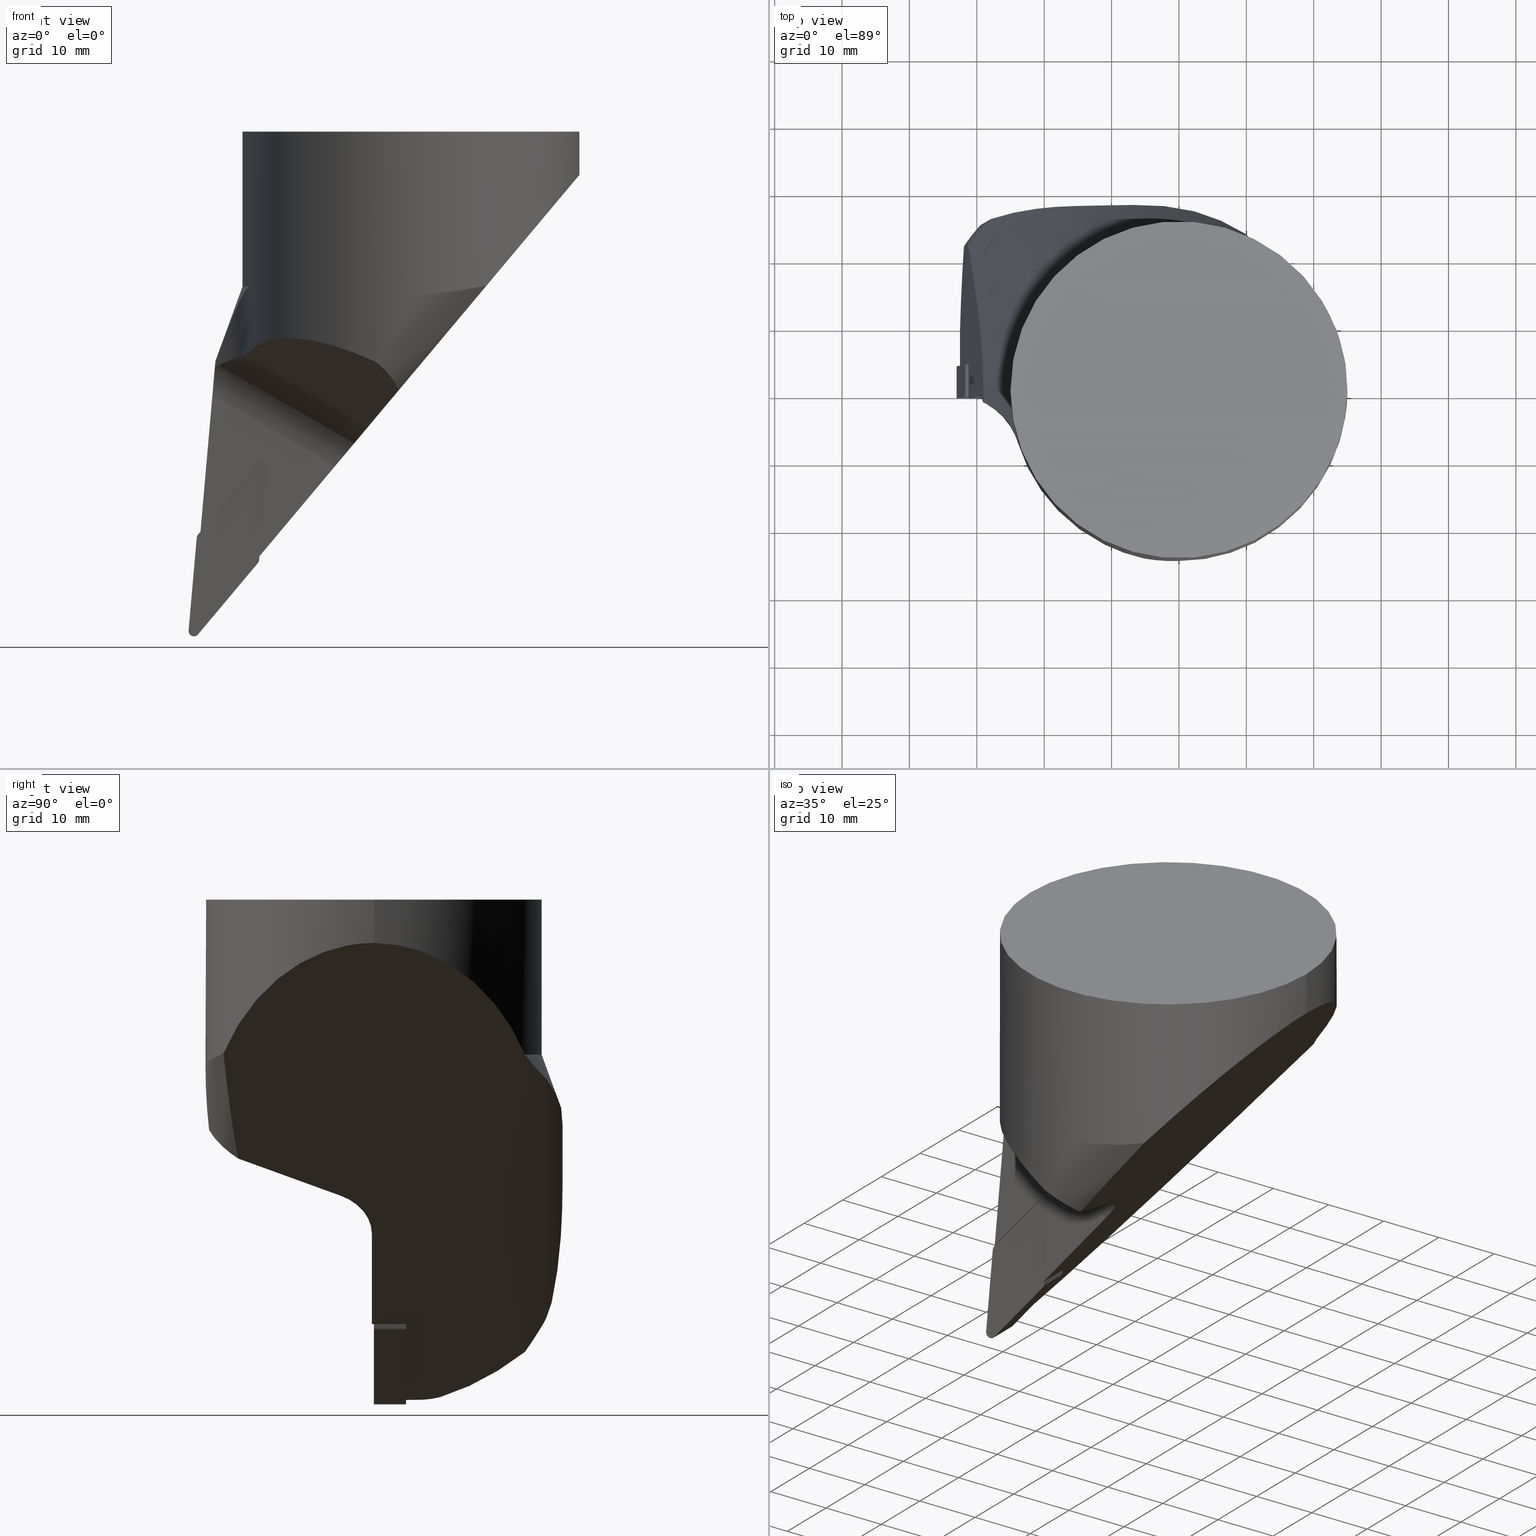
[diagram: canonical four-view strip — front | top / right | iso, engineering-drawing reading convention]
A machine part, canonical four-view strip (front | top / right | iso — engineering-drawing reading convention). The complete STEP part file that produces these views, byte-faithful:
ISO-10303-21;
HEADER;
FILE_DESCRIPTION((''),'1');
FILE_NAME('//Big_tech03/bigt/Translate/11_3D_Field/02_Step_Field/91_\X2\65CB524A30C430FC30EB\X0\/S\X2\30AB30FC30C830EA30C330B8\X0\/S50-SVLBR-33075-16.stp','2012-12-27T01:50:25',(''),(''),'Spatial Interop R18','Kubotek KeyCreator V8.5.1 (14335)',' ');
FILE_SCHEMA(('CONFIG_CONTROL_DESIGN'));
ENDSEC;
DATA;
#1=DESIGN_CONTEXT('',#27,'design');
#2=APPLICATION_PROTOCOL_DEFINITION('INTERNATIONAL STANDARD','config_control_design',1994,#27);
#3=PRODUCT_CATEGORY_RELATIONSHIP('NONE','NONE',#28,#29);
#4=DATE_AND_TIME(#30,#31);
#5=DATE_TIME_ROLE('creation_date');
#6=DATE_TIME_ROLE('classification_date');
#7=PERSON_AND_ORGANIZATION_ROLE('creator');
#8=PERSON_AND_ORGANIZATION_ROLE('design_supplier');
#9=PERSON_AND_ORGANIZATION_ROLE('classification_officer');
#10=PERSON_AND_ORGANIZATION_ROLE('design_owner');
#11=APPROVAL_PERSON_ORGANIZATION(#32,#33,#34);
#12=APPROVAL_DATE_TIME(#4,#33);
#13=CC_DESIGN_APPROVAL(#33,(#35,#36,#37));
#14=CC_DESIGN_DATE_AND_TIME_ASSIGNMENT(#4,#5,(#37));
#15=CC_DESIGN_DATE_AND_TIME_ASSIGNMENT(#4,#6,(#35));
#16=CC_DESIGN_PERSON_AND_ORGANIZATION_ASSIGNMENT(#32,#10,(#38));
#17=CC_DESIGN_PERSON_AND_ORGANIZATION_ASSIGNMENT(#32,#7,(#37));
#18=CC_DESIGN_PERSON_AND_ORGANIZATION_ASSIGNMENT(#32,#7,(#36));
#19=CC_DESIGN_PERSON_AND_ORGANIZATION_ASSIGNMENT(#32,#8,(#36));
#20=CC_DESIGN_SECURITY_CLASSIFICATION(#35,(#36));
#21=CC_DESIGN_PERSON_AND_ORGANIZATION_ASSIGNMENT(#32,#9,(#35));
#22=SHAPE_DEFINITION_REPRESENTATION(#39,#40);
#23= (GEOMETRIC_REPRESENTATION_CONTEXT(3)GLOBAL_UNCERTAINTY_ASSIGNED_CONTEXT((#43))GLOBAL_UNIT_ASSIGNED_CONTEXT((#45,#46,#47))REPRESENTATION_CONTEXT('NONE','WORKSPACE'));
#27=APPLICATION_CONTEXT('CONFIGURATION CONTROLLED 3D DESIGNS OF MECHANICAL PARTS AND ASSEMBLIES');
#28=PRODUCT_CATEGORY('part','NONE');
#29=PRODUCT_RELATED_PRODUCT_CATEGORY('detail',' ',(#38));
#30=CALENDAR_DATE(2012,27,11);
#31=LOCAL_TIME(10,50,25.0,#49);
#32=PERSON_AND_ORGANIZATION(#50,#51);
#33=APPROVAL(#52,'SOLID MODEL');
#34=APPROVAL_ROLE('APPROVED');
#35=SECURITY_CLASSIFICATION('','',#53);
#36=PRODUCT_DEFINITION_FORMATION_WITH_SPECIFIED_SOURCE(' ','NONE',#38,.NOT_KNOWN.);
#37=PRODUCT_DEFINITION('NONE','NONE',#36,#1);
#38=PRODUCT('1','1','PART-1-DESC',(#54));
#39=PRODUCT_DEFINITION_SHAPE('NONE','NONE',#37);
#40=ADVANCED_BREP_SHAPE_REPRESENTATION('1',(#55,#56),#23);
#43=UNCERTAINTY_MEASURE_WITH_UNIT(LENGTH_MEASURE(1.0E-006),#45,'','');
#45= (CONVERSION_BASED_UNIT('MILLIMETRE',#59)LENGTH_UNIT()NAMED_UNIT(#62));
#46= (NAMED_UNIT(#64)PLANE_ANGLE_UNIT()SI_UNIT($,.RADIAN.));
#47= (NAMED_UNIT(#64)SOLID_ANGLE_UNIT()SI_UNIT($,.STERADIAN.));
#49=COORDINATED_UNIVERSAL_TIME_OFFSET(9,0,.AHEAD.);
#50=PERSON('','UNSPECIFIED',$,$,$,$);
#51=ORGANIZATION('UNSPECIFIED','UNSPECIFIED','UNSPECIFIED');
#52=APPROVAL_STATUS('approved');
#53=SECURITY_CLASSIFICATION_LEVEL('unclassified');
#54=MECHANICAL_CONTEXT('',#27,'mechanical');
#55=MANIFOLD_SOLID_BREP('1',#70);
#56=AXIS2_PLACEMENT_3D('',#71,#72,#73);
#59=LENGTH_MEASURE_WITH_UNIT(LENGTH_MEASURE(1.0),#74);
#62=DIMENSIONAL_EXPONENTS(1.0,0.0,0.0,0.0,0.0,0.0,0.0);
#64=DIMENSIONAL_EXPONENTS(0.0,0.0,0.0,0.0,0.0,0.0,0.0);
#70=CLOSED_SHELL('',(#75,#76,#77,#78,#79,#80,#81,#82,#83,#84,#85,#86,#87,#88,#89,#90,#91,#92,#93,#94,#95,#96,#97,#98,#99,#100,#101,#102,#103,#104,#105,#106));
#71=CARTESIAN_POINT('',(0.0,0.0,0.0));
#72=DIRECTION('',(0.0,0.0,1.0));
#73=DIRECTION('',(1.0,0.0,0.0));
#74= (NAMED_UNIT(#62)LENGTH_UNIT()SI_UNIT(.MILLI.,.METRE.));
#75=ADVANCED_FACE('',(#108),#109,.F.);
#76=ADVANCED_FACE('',(#110),#111,.T.);
#77=ADVANCED_FACE('',(#112),#113,.F.);
#78=ADVANCED_FACE('',(#114),#115,.T.);
#79=ADVANCED_FACE('',(#116),#117,.F.);
#80=ADVANCED_FACE('',(#118),#119,.T.);
#81=ADVANCED_FACE('',(#120),#121,.F.);
#82=ADVANCED_FACE('',(#122),#123,.F.);
#83=ADVANCED_FACE('',(#124),#125,.T.);
#84=ADVANCED_FACE('',(#126),#127,.T.);
#85=ADVANCED_FACE('',(#128),#129,.T.);
#86=ADVANCED_FACE('',(#130),#131,.F.);
#87=ADVANCED_FACE('',(#132),#133,.T.);
#88=ADVANCED_FACE('',(#134),#135,.T.);
#89=ADVANCED_FACE('',(#136),#137,.F.);
#90=ADVANCED_FACE('',(#138),#139,.T.);
#91=ADVANCED_FACE('',(#140),#141,.T.);
#92=ADVANCED_FACE('',(#142),#143,.T.);
#93=ADVANCED_FACE('',(#144),#145,.T.);
#94=ADVANCED_FACE('',(#146),#147,.T.);
#95=ADVANCED_FACE('',(#148),#149,.T.);
#96=ADVANCED_FACE('',(#150),#151,.F.);
#97=ADVANCED_FACE('',(#152),#153,.T.);
#98=ADVANCED_FACE('',(#154),#155,.T.);
#99=ADVANCED_FACE('',(#156),#157,.F.);
#100=ADVANCED_FACE('',(#158),#159,.T.);
#101=ADVANCED_FACE('',(#160),#161,.T.);
#102=ADVANCED_FACE('',(#162),#163,.T.);
#103=ADVANCED_FACE('',(#164),#165,.T.);
#104=ADVANCED_FACE('',(#166),#167,.T.);
#105=ADVANCED_FACE('',(#168),#169,.T.);
#106=ADVANCED_FACE('',(#170),#171,.F.);
#108=FACE_OUTER_BOUND('',#172,.T.);
#109=PLANE('',#173);
#110=FACE_OUTER_BOUND('',#174,.T.);
#111=CYLINDRICAL_SURFACE('',#175,0.8);
#112=FACE_OUTER_BOUND('',#176,.T.);
#113=PLANE('',#177);
#114=FACE_OUTER_BOUND('',#178,.T.);
#115=(B_SPLINE_SURFACE(1,2,((#180,#181,#182,#183,#184,#185,#186,#187,#188),(#189,#190,#191,#192,#193,#194,#195,#196,#197)),.UNSPECIFIED.,.F.,.T.,.F.)B_SPLINE_SURFACE_WITH_KNOTS((2,2),(3,2,2,2,3),(0.0,5.71310793192006),(0.0,1.30874308776289,2.61748617552577,3.92622926328866,5.23497235105155),.UNSPECIFIED.)RATIONAL_B_SPLINE_SURFACE(((1.0,0.707106781186547,1.0,0.707106781186547,1.0,0.707106781186547,1.0,0.707106781186547,1.0),(1.0,0.707106781186547,1.0,0.707106781186547,1.0,0.707106781186547,1.0,0.707106781186547,1.0)))BOUNDED_SURFACE()REPRESENTATION_ITEM('')GEOMETRIC_REPRESENTATION_ITEM()SURFACE());
#116=FACE_OUTER_BOUND('',#204,.T.);
#117=PLANE('',#205);
#118=FACE_OUTER_BOUND('',#206,.T.);
#119=(B_SPLINE_SURFACE(1,2,((#208,#209,#210,#211,#212,#213,#214,#215,#216),(#217,#218,#219,#220,#221,#222,#223,#224,#225)),.UNSPECIFIED.,.F.,.T.,.F.)B_SPLINE_SURFACE_WITH_KNOTS((2,2),(3,2,2,2,3),(0.0,5.92512168053696),(0.0,1.26191341185522,2.52382682371043,3.78574023556565,5.04765364742086),.UNSPECIFIED.)RATIONAL_B_SPLINE_SURFACE(((1.0,0.707106781186547,1.0,0.707106781186547,1.0,0.707106781186547,1.0,0.707106781186547,1.0),(1.0,0.707106781186547,1.0,0.707106781186547,1.0,0.707106781186547,1.0,0.707106781186547,1.0)))BOUNDED_SURFACE()REPRESENTATION_ITEM('')GEOMETRIC_REPRESENTATION_ITEM()SURFACE());
#120=FACE_OUTER_BOUND('',#232,.T.);
#121=PLANE('',#233);
#122=FACE_OUTER_BOUND('',#234,.T.);
#123=PLANE('',#235);
#124=FACE_OUTER_BOUND('',#236,.T.);
#125=PLANE('',#237);
#126=FACE_OUTER_BOUND('',#238,.T.);
#127=PLANE('',#239);
#128=FACE_OUTER_BOUND('',#240,.T.);
#129=PLANE('',#241);
#130=FACE_OUTER_BOUND('',#242,.T.);
#131=(B_SPLINE_SURFACE(1,2,((#244,#245,#246,#247,#248,#249,#250,#251,#252),(#253,#254,#255,#256,#257,#258,#259,#260,#261)),.UNSPECIFIED.,.F.,.T.,.F.)B_SPLINE_SURFACE_WITH_KNOTS((2,2),(3,2,2,2,3),(0.0,0.360069827642021),(0.0,1.30874308776289,2.61748617552578,3.92622926328866,5.23497235105155),.UNSPECIFIED.)RATIONAL_B_SPLINE_SURFACE(((1.0,0.707106781186547,1.0,0.707106781186547,1.0,0.707106781186547,1.0,0.707106781186547,1.0),(1.0,0.707106781186547,1.0,0.707106781186547,1.0,0.707106781186547,1.0,0.707106781186547,1.0)))BOUNDED_SURFACE()REPRESENTATION_ITEM('')GEOMETRIC_REPRESENTATION_ITEM()SURFACE());
#132=FACE_OUTER_BOUND('',#268,.T.);
#133=PLANE('',#269);
#134=FACE_OUTER_BOUND('',#270,.T.);
#135=PLANE('',#271);
#136=FACE_OUTER_BOUND('',#272,.T.);
#137=CYLINDRICAL_SURFACE('',#273,7.99999999999996);
#138=FACE_OUTER_BOUND('',#274,.T.);
#139=CONICAL_SURFACE('',#275,25.5793809405338,0.34906584960114);
#140=FACE_OUTER_BOUND('',#276,.T.);
#141=CYLINDRICAL_SURFACE('',#277,25.0);
#142=FACE_OUTER_BOUND('',#278,.T.);
#143=CYLINDRICAL_SURFACE('',#279,0.399999999999967);
#144=FACE_OUTER_BOUND('',#280,.T.);
#145=CYLINDRICAL_SURFACE('',#281,0.399999999999967);
#146=FACE_OUTER_BOUND('',#282,.T.);
#147=CYLINDRICAL_SURFACE('',#283,25.0);
#148=FACE_OUTER_BOUND('',#284,.T.);
#149=CONICAL_SURFACE('',#285,26.914366562906,0.349065849601135);
#150=FACE_OUTER_BOUND('',#286,.T.);
#151=CYLINDRICAL_SURFACE('',#287,7.99999999999998);
#152=FACE_OUTER_BOUND('',#288,.T.);
#153=PLANE('',#289);
#154=FACE_OUTER_BOUND('',#290,.T.);
#155=PLANE('',#291);
#156=FACE_OUTER_BOUND('',#292,.T.);
#157=CYLINDRICAL_SURFACE('',#293,10.0);
#158=FACE_OUTER_BOUND('',#294,.T.);
#159=CYLINDRICAL_SURFACE('',#295,10.0);
#160=FACE_OUTER_BOUND('',#296,.T.);
#161=CYLINDRICAL_SURFACE('',#297,4.99999999999998);
#162=FACE_OUTER_BOUND('',#298,.T.);
#163=CYLINDRICAL_SURFACE('',#299,49.9999999999999);
#164=FACE_OUTER_BOUND('',#300,.T.);
#165=PLANE('',#301);
#166=FACE_OUTER_BOUND('',#302,.T.);
#167=TOROIDAL_SURFACE('',#303,29.0000000001305,10.0000000000009);
#168=FACE_OUTER_BOUND('',#304,.T.);
#169=CYLINDRICAL_SURFACE('',#305,39.0);
#170=FACE_OUTER_BOUND('',#306,.T.);
#171=PLANE('',#307);
#172=EDGE_LOOP('',(#308,#309,#310,#311));
#173=AXIS2_PLACEMENT_3D('',#312,#313,#314);
#174=EDGE_LOOP('',(#315,#316,#317,#318));
#175=AXIS2_PLACEMENT_3D('',#319,#320,#321);
#176=EDGE_LOOP('',(#322,#323,#324,#325));
#177=AXIS2_PLACEMENT_3D('',#326,#327,#328);
#178=EDGE_LOOP('',(#329,#330,#331,#332));
#180=CARTESIAN_POINT('',(-31.8760462587981,4.76,-73.302133003767));
#181=CARTESIAN_POINT('',(-31.136942632789,4.76,-73.6082797496591));
#182=CARTESIAN_POINT('',(-31.4557836488813,4.76,-74.3780300549497));
#183=CARTESIAN_POINT('',(-31.7746246649735,4.76,-75.1477803602404));
#184=CARTESIAN_POINT('',(-32.5137282909825,4.76,-74.8416336143483));
#185=CARTESIAN_POINT('',(-33.2528319169915,4.76,-74.5354868684562));
#186=CARTESIAN_POINT('',(-32.9339909008993,4.76,-73.7657365631656));
#187=CARTESIAN_POINT('',(-32.6151498848071,4.76,-72.9959862578749));
#188=CARTESIAN_POINT('',(-31.8760462587981,4.76,-73.302133003767));
#189=CARTESIAN_POINT('',(-31.8760462587981,-4.44089209850063E-015,-73.302133003767));
#190=CARTESIAN_POINT('',(-31.136942632789,-4.44089209850063E-015,-73.6082797496591));
#191=CARTESIAN_POINT('',(-31.4557836488813,-4.44089209850063E-015,-74.3780300549497));
#192=CARTESIAN_POINT('',(-31.7746246649735,-4.44089209850063E-015,-75.1477803602404));
#193=CARTESIAN_POINT('',(-32.5137282909825,-4.44089209850063E-015,-74.8416336143483));
#194=CARTESIAN_POINT('',(-33.2528319169915,-4.44089209850063E-015,-74.5354868684562));
#195=CARTESIAN_POINT('',(-32.9339909008993,-4.44089209850063E-015,-73.7657365631656));
#196=CARTESIAN_POINT('',(-32.6151498848071,-4.44089209850063E-015,-72.9959862578749));
#197=CARTESIAN_POINT('',(-31.8760462587981,-4.44089209850063E-015,-73.302133003767));
#204=EDGE_LOOP('',(#333,#334,#335,#336));
#205=AXIS2_PLACEMENT_3D('',#337,#338,#339);
#206=EDGE_LOOP('',(#340,#341,#342,#343));
#208=CARTESIAN_POINT('',(-24.062665421225,4.76,-63.1883186925601));
#209=CARTESIAN_POINT('',(-23.756518675333,4.76,-62.4492150665511));
#210=CARTESIAN_POINT('',(-23.0143117111791,4.76,-62.7566472571914));
#211=CARTESIAN_POINT('',(-22.2721047470252,4.76,-63.0640794478317));
#212=CARTESIAN_POINT('',(-22.5782514929173,4.76,-63.8031830738407));
#213=CARTESIAN_POINT('',(-22.8843982388094,4.76,-64.5422866998498));
#214=CARTESIAN_POINT('',(-23.6266052029632,4.76,-64.2348545092094));
#215=CARTESIAN_POINT('',(-24.3688121671171,4.76,-63.9274223185691));
#216=CARTESIAN_POINT('',(-24.062665421225,4.76,-63.1883186925601));
#217=CARTESIAN_POINT('',(-24.062665421225,-4.44089209850063E-015,-63.1883186925601));
#218=CARTESIAN_POINT('',(-23.756518675333,-4.44089209850063E-015,-62.4492150665511));
#219=CARTESIAN_POINT('',(-23.0143117111791,-4.44089209850063E-015,-62.7566472571914));
#220=CARTESIAN_POINT('',(-22.2721047470252,-4.44089209850063E-015,-63.0640794478317));
#221=CARTESIAN_POINT('',(-22.5782514929173,-4.44089209850063E-015,-63.8031830738407));
#222=CARTESIAN_POINT('',(-22.8843982388094,-4.44089209850063E-015,-64.5422866998498));
#223=CARTESIAN_POINT('',(-23.6266052029632,-4.44089209850063E-015,-64.2348545092094));
#224=CARTESIAN_POINT('',(-24.3688121671171,-4.44089209850063E-015,-63.9274223185691));
#225=CARTESIAN_POINT('',(-24.062665421225,-4.44089209850063E-015,-63.1883186925601));
#232=EDGE_LOOP('',(#344,#345,#346,#347));
#233=AXIS2_PLACEMENT_3D('',#348,#349,#350);
#234=EDGE_LOOP('',(#351,#352,#353,#354,#355,#356,#357,#358,#359,#360,#361));
#235=AXIS2_PLACEMENT_3D('',#362,#363,#364);
#236=EDGE_LOOP('',(#365,#366,#367,#368,#369,#370,#371,#372,#373,#374));
#237=AXIS2_PLACEMENT_3D('',#375,#376,#377);
#238=EDGE_LOOP('',(#378,#379,#380,#381));
#239=AXIS2_PLACEMENT_3D('',#382,#383,#384);
#240=EDGE_LOOP('',(#385,#386,#387,#388));
#241=AXIS2_PLACEMENT_3D('',#389,#390,#391);
#242=EDGE_LOOP('',(#392,#393,#394,#395));
#244=CARTESIAN_POINT('',(-21.7983312801651,-0.300000000000004,-48.9723768246223));
#245=CARTESIAN_POINT('',(-22.5374349061742,-0.300000000000004,-48.6662300787302));
#246=CARTESIAN_POINT('',(-22.8562759222664,-0.300000000000004,-49.4359803840208));
#247=CARTESIAN_POINT('',(-23.1751169383586,-0.300000000000004,-50.2057306893115));
#248=CARTESIAN_POINT('',(-22.4360133123496,-0.300000000000004,-50.5118774352035));
#249=CARTESIAN_POINT('',(-21.6969096863405,-0.300000000000004,-50.8180241810956));
#250=CARTESIAN_POINT('',(-21.3780686702483,-0.300000000000004,-50.048273875805));
#251=CARTESIAN_POINT('',(-21.0592276541561,-0.300000000000004,-49.2785235705144));
#252=CARTESIAN_POINT('',(-21.7983312801651,-0.300000000000004,-48.9723768246223));
#253=CARTESIAN_POINT('',(-21.7983312801651,-3.88578058618805E-015,-48.9723768246223));
#254=CARTESIAN_POINT('',(-22.5374349061742,-3.88578058618805E-015,-48.6662300787302));
#255=CARTESIAN_POINT('',(-22.8562759222664,-3.88578058618805E-015,-49.4359803840208));
#256=CARTESIAN_POINT('',(-23.1751169383586,-3.88578058618805E-015,-50.2057306893115));
#257=CARTESIAN_POINT('',(-22.4360133123496,-3.88578058618805E-015,-50.5118774352035));
#258=CARTESIAN_POINT('',(-21.6969096863405,-3.88578058618805E-015,-50.8180241810956));
#259=CARTESIAN_POINT('',(-21.3780686702483,-3.88578058618805E-015,-50.048273875805));
#260=CARTESIAN_POINT('',(-21.0592276541561,-3.88578058618805E-015,-49.2785235705144));
#261=CARTESIAN_POINT('',(-21.7983312801651,-3.88578058618805E-015,-48.9723768246223));
#268=EDGE_LOOP('',(#396,#397,#398,#399,#400,#401));
#269=AXIS2_PLACEMENT_3D('',#402,#403,#404);
#270=EDGE_LOOP('',(#405,#406,#407,#408,#409,#410,#411,#412,#413,#414,#415,#416,#417));
#271=AXIS2_PLACEMENT_3D('',#418,#419,#420);
#272=EDGE_LOOP('',(#421,#422,#423,#424));
#273=AXIS2_PLACEMENT_3D('',#425,#426,#427);
#274=EDGE_LOOP('',(#428,#429,#430,#431,#432,#433));
#275=AXIS2_PLACEMENT_3D('',#434,#435,#436);
#276=EDGE_LOOP('',(#437,#438,#439,#440,#441));
#277=AXIS2_PLACEMENT_3D('',#442,#443,#444);
#278=EDGE_LOOP('',(#445,#446,#447,#448));
#279=AXIS2_PLACEMENT_3D('',#449,#450,#451);
#280=EDGE_LOOP('',(#452,#453,#454,#455));
#281=AXIS2_PLACEMENT_3D('',#456,#457,#458);
#282=EDGE_LOOP('',(#459,#460,#461,#462,#463,#464,#465,#466,#467));
#283=AXIS2_PLACEMENT_3D('',#468,#469,#470);
#284=EDGE_LOOP('',(#471,#472,#473,#474,#475,#476,#477,#478,#479));
#285=AXIS2_PLACEMENT_3D('',#480,#481,#482);
#286=EDGE_LOOP('',(#483,#484,#485,#486,#487));
#287=AXIS2_PLACEMENT_3D('',#488,#489,#490);
#288=EDGE_LOOP('',(#491,#492,#493,#494,#495));
#289=AXIS2_PLACEMENT_3D('',#496,#497,#498);
#290=EDGE_LOOP('',(#499,#500,#501,#502,#503,#504,#505,#506,#507,#508,#509,#510,#511));
#291=AXIS2_PLACEMENT_3D('',#512,#513,#514);
#292=EDGE_LOOP('',(#515,#516,#517,#518,#519,#520,#521));
#293=AXIS2_PLACEMENT_3D('',#522,#523,#524);
#294=EDGE_LOOP('',(#525,#526,#527,#528));
#295=AXIS2_PLACEMENT_3D('',#529,#530,#531);
#296=EDGE_LOOP('',(#532,#533,#534,#535,#536));
#297=AXIS2_PLACEMENT_3D('',#537,#538,#539);
#298=EDGE_LOOP('',(#540,#541,#542,#543,#544,#545,#546,#547));
#299=AXIS2_PLACEMENT_3D('',#548,#549,#550);
#300=EDGE_LOOP('',(#551,#552));
#301=AXIS2_PLACEMENT_3D('',#553,#554,#555);
#302=EDGE_LOOP('',(#556,#557,#558,#559,#560));
#303=AXIS2_PLACEMENT_3D('',#561,#562,#563);
#304=EDGE_LOOP('',(#564,#565,#566));
#305=AXIS2_PLACEMENT_3D('',#567,#568,#569);
#306=EDGE_LOOP('',(#570,#571));
#307=AXIS2_PLACEMENT_3D('',#572,#573,#574);
#308=ORIENTED_EDGE('',*,*,#575,.T.);
#309=ORIENTED_EDGE('',*,*,#576,.F.);
#310=ORIENTED_EDGE('',*,*,#577,.T.);
#311=ORIENTED_EDGE('',*,*,#578,.F.);
#312=CARTESIAN_POINT('',(-31.2332572213502,4.76,-59.3569209419023));
#313=DIRECTION('',(0.766044443225956,-0.0,-0.642787609559048));
#314=DIRECTION('',(-0.642787609559048,0.0,-0.766044443225956));
#315=ORIENTED_EDGE('',*,*,#579,.F.);
#316=ORIENTED_EDGE('',*,*,#577,.F.);
#317=ORIENTED_EDGE('',*,*,#580,.F.);
#318=ORIENTED_EDGE('',*,*,#581,.T.);
#319=CARTESIAN_POINT('',(-30.9945613829173,4.76,-60.3170333805517));
#320=DIRECTION('',(-0.0,-1.0,-0.0));
#321=DIRECTION('',(-0.99619469810625,0.0,0.087155742581868));
#322=ORIENTED_EDGE('',*,*,#582,.F.);
#323=ORIENTED_EDGE('',*,*,#581,.F.);
#324=ORIENTED_EDGE('',*,*,#583,.F.);
#325=ORIENTED_EDGE('',*,*,#584,.T.);
#326=CARTESIAN_POINT('',(-31.7915171414023,4.76,-60.2473087864862));
#327=DIRECTION('',(0.996194698106251,-0.0,-0.0871557425818641));
#328=DIRECTION('',(-0.0871557425818642,0.0,-0.996194698106251));
#329=ORIENTED_EDGE('',*,*,#585,.F.);
#330=ORIENTED_EDGE('',*,*,#584,.F.);
#331=ORIENTED_EDGE('',*,*,#586,.F.);
#332=ORIENTED_EDGE('',*,*,#587,.T.);
#333=ORIENTED_EDGE('',*,*,#588,.F.);
#334=ORIENTED_EDGE('',*,*,#587,.F.);
#335=ORIENTED_EDGE('',*,*,#589,.F.);
#336=ORIENTED_EDGE('',*,*,#590,.T.);
#337=CARTESIAN_POINT('',(-31.5921468528075,4.76,-74.6028983969518));
#338=DIRECTION('',(-0.766044443118969,0.0,0.64278760968655));
#339=DIRECTION('',(0.64278760968655,0.0,0.766044443118969));
#340=ORIENTED_EDGE('',*,*,#591,.F.);
#341=ORIENTED_EDGE('',*,*,#590,.F.);
#342=ORIENTED_EDGE('',*,*,#592,.F.);
#343=ORIENTED_EDGE('',*,*,#593,.T.);
#344=ORIENTED_EDGE('',*,*,#594,.T.);
#345=ORIENTED_EDGE('',*,*,#595,.F.);
#346=ORIENTED_EDGE('',*,*,#593,.F.);
#347=ORIENTED_EDGE('',*,*,#596,.F.);
#348=CARTESIAN_POINT('',(-22.5206260887477,4.76,-63.5676578528514));
#349=DIRECTION('',(-0.996194698091744,0.0,0.0871557427476779));
#350=DIRECTION('',(0.0871557427476779,0.0,0.996194698091744));
#351=ORIENTED_EDGE('',*,*,#597,.T.);
#352=ORIENTED_EDGE('',*,*,#598,.T.);
#353=ORIENTED_EDGE('',*,*,#599,.T.);
#354=ORIENTED_EDGE('',*,*,#600,.T.);
#355=ORIENTED_EDGE('',*,*,#596,.T.);
#356=ORIENTED_EDGE('',*,*,#592,.T.);
#357=ORIENTED_EDGE('',*,*,#589,.T.);
#358=ORIENTED_EDGE('',*,*,#586,.T.);
#359=ORIENTED_EDGE('',*,*,#583,.T.);
#360=ORIENTED_EDGE('',*,*,#580,.T.);
#361=ORIENTED_EDGE('',*,*,#576,.T.);
#362=CARTESIAN_POINT('',(-29.6776524887203,4.76,-67.9946030380549));
#363=DIRECTION('',(2.28669588892004E-031,-1.0,1.29362227545737E-030));
#364=DIRECTION('',(0.0,1.29362227545737E-030,1.0));
#365=ORIENTED_EDGE('',*,*,#595,.T.);
#366=ORIENTED_EDGE('',*,*,#601,.T.);
#367=ORIENTED_EDGE('',*,*,#602,.T.);
#368=ORIENTED_EDGE('',*,*,#603,.T.);
#369=ORIENTED_EDGE('',*,*,#578,.T.);
#370=ORIENTED_EDGE('',*,*,#579,.T.);
#371=ORIENTED_EDGE('',*,*,#582,.T.);
#372=ORIENTED_EDGE('',*,*,#585,.T.);
#373=ORIENTED_EDGE('',*,*,#588,.T.);
#374=ORIENTED_EDGE('',*,*,#591,.T.);
#375=CARTESIAN_POINT('',(-29.6776524887203,-4.9960036108132E-015,-67.9946030380549));
#376=DIRECTION('',(-3.18922833379685E-030,-1.0,3.27031533100503E-030));
#377=DIRECTION('',(0.0,3.27031533100503E-030,1.0));
#378=ORIENTED_EDGE('',*,*,#601,.F.);
#379=ORIENTED_EDGE('',*,*,#604,.T.);
#380=ORIENTED_EDGE('',*,*,#605,.T.);
#381=ORIENTED_EDGE('',*,*,#606,.T.);
#382=CARTESIAN_POINT('',(-21.3154860869451,-0.300000000000004,-49.7928446001006));
#383=DIRECTION('',(-0.996194698091744,0.0,0.087155742747678));
#384=DIRECTION('',(0.0871557427476781,0.0,0.996194698091744));
#385=ORIENTED_EDGE('',*,*,#603,.F.);
#386=ORIENTED_EDGE('',*,*,#607,.F.);
#387=ORIENTED_EDGE('',*,*,#608,.T.);
#388=ORIENTED_EDGE('',*,*,#609,.T.);
#389=CARTESIAN_POINT('',(-31.6073969374125,-0.300000000000004,-59.8028032928025));
#390=DIRECTION('',(0.766044443225956,-0.0,-0.642787609559048));
#391=DIRECTION('',(-0.642787609559048,0.0,-0.766044443225956));
#392=ORIENTED_EDGE('',*,*,#602,.F.);
#393=ORIENTED_EDGE('',*,*,#606,.F.);
#394=ORIENTED_EDGE('',*,*,#610,.T.);
#395=ORIENTED_EDGE('',*,*,#607,.T.);
#396=ORIENTED_EDGE('',*,*,#605,.F.);
#397=ORIENTED_EDGE('',*,*,#611,.F.);
#398=ORIENTED_EDGE('',*,*,#612,.F.);
#399=ORIENTED_EDGE('',*,*,#613,.F.);
#400=ORIENTED_EDGE('',*,*,#608,.F.);
#401=ORIENTED_EDGE('',*,*,#610,.F.);
#402=CARTESIAN_POINT('',(-21.7659000007315,-0.300000000000004,-56.6499613196069));
#403=DIRECTION('',(0.0,-1.0,0.0));
#404=DIRECTION('',(0.0,0.0,1.0));
#405=ORIENTED_EDGE('',*,*,#609,.F.);
#406=ORIENTED_EDGE('',*,*,#613,.T.);
#407=ORIENTED_EDGE('',*,*,#614,.T.);
#408=ORIENTED_EDGE('',*,*,#615,.T.);
#409=ORIENTED_EDGE('',*,*,#616,.T.);
#410=ORIENTED_EDGE('',*,*,#617,.F.);
#411=ORIENTED_EDGE('',*,*,#618,.F.);
#412=ORIENTED_EDGE('',*,*,#619,.F.);
#413=ORIENTED_EDGE('',*,*,#620,.F.);
#414=ORIENTED_EDGE('',*,*,#621,.T.);
#415=ORIENTED_EDGE('',*,*,#622,.T.);
#416=ORIENTED_EDGE('',*,*,#597,.F.);
#417=ORIENTED_EDGE('',*,*,#575,.F.);
#418=CARTESIAN_POINT('',(-30.7576985859095,10.8336213855461,-53.9212608657858));
#419=DIRECTION('',(-0.996194698091746,0.0,0.0871557427476573));
#420=DIRECTION('',(0.0871557427476573,0.0,0.996194698091746));
#421=ORIENTED_EDGE('',*,*,#623,.T.);
#422=ORIENTED_EDGE('',*,*,#624,.F.);
#423=ORIENTED_EDGE('',*,*,#625,.T.);
#424=ORIENTED_EDGE('',*,*,#626,.T.);
#425=CARTESIAN_POINT('',(-13.543318961027,-8.30000000000007,-48.2397025620946));
#426=DIRECTION('',(0.866025403784439,3.6082248300318E-016,-0.5));
#427=DIRECTION('',(0.329672907550037,-0.751839807478974,0.57101022575562));
#428=ORIENTED_EDGE('',*,*,#627,.T.);
#429=ORIENTED_EDGE('',*,*,#617,.T.);
#430=ORIENTED_EDGE('',*,*,#616,.F.);
#431=ORIENTED_EDGE('',*,*,#628,.F.);
#432=ORIENTED_EDGE('',*,*,#629,.T.);
#433=ORIENTED_EDGE('',*,*,#630,.F.);
#434=CARTESIAN_POINT('',(1.02140518265514E-013,-3.83026943495679E-014,-24.5918360075933));
#435=DIRECTION('',(6.21461900176166E-015,1.0898764596309E-015,-1.0));
#436=DIRECTION('',(0.147809411129609,-0.989015863361917,-1.5932593263442E-016));
#437=ORIENTED_EDGE('',*,*,#631,.T.);
#438=ORIENTED_EDGE('',*,*,#632,.F.);
#439=ORIENTED_EDGE('',*,*,#633,.T.);
#440=ORIENTED_EDGE('',*,*,#634,.T.);
#441=ORIENTED_EDGE('',*,*,#635,.T.);
#442=CARTESIAN_POINT('',(6.66133814775094E-015,1.33226762955019E-014,-18.3999999809052));
#443=DIRECTION('',(-0.0,-0.0,-1.0));
#444=DIRECTION('',(-2.66453525910038E-016,-1.0,0.0));
#445=ORIENTED_EDGE('',*,*,#598,.F.);
#446=ORIENTED_EDGE('',*,*,#622,.F.);
#447=ORIENTED_EDGE('',*,*,#636,.T.);
#448=ORIENTED_EDGE('',*,*,#637,.T.);
#449=CARTESIAN_POINT('',(-32.0995238220154,7.83715038772298,-73.8478787939094));
#450=DIRECTION('',(0.0,1.0,-0.0));
#451=DIRECTION('',(-0.518773258230011,0.0,0.854911870630779));
#452=ORIENTED_EDGE('',*,*,#599,.F.);
#453=ORIENTED_EDGE('',*,*,#637,.F.);
#454=ORIENTED_EDGE('',*,*,#638,.T.);
#455=ORIENTED_EDGE('',*,*,#639,.F.);
#456=CARTESIAN_POINT('',(-32.0995238220154,5.72097919380422,-73.8478787939094));
#457=DIRECTION('',(-0.0,1.0,0.0));
#458=DIRECTION('',(-0.971342069813262,0.0,-0.237685892326171));
#459=ORIENTED_EDGE('',*,*,#631,.F.);
#460=ORIENTED_EDGE('',*,*,#630,.T.);
#461=ORIENTED_EDGE('',*,*,#640,.F.);
#462=ORIENTED_EDGE('',*,*,#641,.T.);
#463=ORIENTED_EDGE('',*,*,#642,.T.);
#464=ORIENTED_EDGE('',*,*,#643,.T.);
#465=ORIENTED_EDGE('',*,*,#644,.T.);
#466=ORIENTED_EDGE('',*,*,#633,.F.);
#467=ORIENTED_EDGE('',*,*,#645,.F.);
#468=CARTESIAN_POINT('',(6.66133814775094E-015,1.33226762955019E-014,-27.3473917143842));
#469=DIRECTION('',(-0.0,-0.0,-1.0));
#470=DIRECTION('',(-4.44089209850063E-017,1.0,0.0));
#471=ORIENTED_EDGE('',*,*,#627,.F.);
#472=ORIENTED_EDGE('',*,*,#635,.F.);
#473=ORIENTED_EDGE('',*,*,#646,.T.);
#474=ORIENTED_EDGE('',*,*,#647,.F.);
#475=ORIENTED_EDGE('',*,*,#648,.T.);
#476=ORIENTED_EDGE('',*,*,#649,.T.);
#477=ORIENTED_EDGE('',*,*,#650,.T.);
#478=ORIENTED_EDGE('',*,*,#651,.F.);
#479=ORIENTED_EDGE('',*,*,#618,.T.);
#480=CARTESIAN_POINT('',(1.37667655053519E-013,-4.16333634234434E-014,-28.2596788694616));
#481=DIRECTION('',(2.41693368980841E-015,-2.22579061936317E-016,-1.0));
#482=DIRECTION('',(-0.849577253177884,-0.527464208153238,-1.93596939664479E-015));
#483=ORIENTED_EDGE('',*,*,#623,.F.);
#484=ORIENTED_EDGE('',*,*,#652,.T.);
#485=ORIENTED_EDGE('',*,*,#614,.F.);
#486=ORIENTED_EDGE('',*,*,#612,.T.);
#487=ORIENTED_EDGE('',*,*,#653,.F.);
#488=CARTESIAN_POINT('',(-13.5638281177501,-8.30000000000005,-48.2278615949397));
#489=DIRECTION('',(0.866025403784439,-1.76247905159244E-015,-0.5));
#490=DIRECTION('',(0.480024927192963,-0.279829014030997,0.831427562797765));
#491=ORIENTED_EDGE('',*,*,#625,.F.);
#492=ORIENTED_EDGE('',*,*,#654,.F.);
#493=ORIENTED_EDGE('',*,*,#655,.F.);
#494=ORIENTED_EDGE('',*,*,#641,.F.);
#495=ORIENTED_EDGE('',*,*,#656,.F.);
#496=CARTESIAN_POINT('',(-12.5024516874184,-13.8285333418636,-35.6712639192933));
#497=DIRECTION('',(-0.453153893518324,-0.422618261740699,-0.784885567221396));
#498=DIRECTION('',(-0.866025403784439,0.0,0.499999999999999));
#499=ORIENTED_EDGE('',*,*,#594,.F.);
#500=ORIENTED_EDGE('',*,*,#600,.F.);
#501=ORIENTED_EDGE('',*,*,#639,.T.);
#502=ORIENTED_EDGE('',*,*,#657,.T.);
#503=ORIENTED_EDGE('',*,*,#646,.F.);
#504=ORIENTED_EDGE('',*,*,#634,.F.);
#505=ORIENTED_EDGE('',*,*,#644,.F.);
#506=ORIENTED_EDGE('',*,*,#658,.T.);
#507=ORIENTED_EDGE('',*,*,#654,.T.);
#508=ORIENTED_EDGE('',*,*,#624,.T.);
#509=ORIENTED_EDGE('',*,*,#653,.T.);
#510=ORIENTED_EDGE('',*,*,#611,.T.);
#511=ORIENTED_EDGE('',*,*,#604,.F.);
#512=CARTESIAN_POINT('',(-3.39655302238395,0.635729912306551,-40.2632997560661));
#513=DIRECTION('',(0.766044443118978,-0.0,-0.642787609686539));
#514=DIRECTION('',(-0.642787609686539,0.0,-0.766044443118978));
#515=ORIENTED_EDGE('',*,*,#629,.F.);
#516=ORIENTED_EDGE('',*,*,#628,.T.);
#517=ORIENTED_EDGE('',*,*,#615,.F.);
#518=ORIENTED_EDGE('',*,*,#652,.F.);
#519=ORIENTED_EDGE('',*,*,#626,.F.);
#520=ORIENTED_EDGE('',*,*,#656,.T.);
#521=ORIENTED_EDGE('',*,*,#640,.T.);
#522=CARTESIAN_POINT('',(-33.4706664587063,-10.2330096652958,-32.5327332301973));
#523=DIRECTION('',(-0.0,-0.0,-1.0));
#524=DIRECTION('',(0.649778022344436,-0.760124017301225,0.0));
#525=ORIENTED_EDGE('',*,*,#655,.T.);
#526=ORIENTED_EDGE('',*,*,#658,.F.);
#527=ORIENTED_EDGE('',*,*,#643,.F.);
#528=ORIENTED_EDGE('',*,*,#642,.F.);
#529=CARTESIAN_POINT('',(-6.37416163501235,-15.0,-30.8110327060518));
#530=DIRECTION('',(-0.707106781186547,3.55271367880049E-017,-0.707106781186548));
#531=DIRECTION('',(-0.61515535468596,-0.49312045100805,0.615155354685959));
#532=ORIENTED_EDGE('',*,*,#650,.F.);
#533=ORIENTED_EDGE('',*,*,#659,.T.);
#534=ORIENTED_EDGE('',*,*,#648,.F.);
#535=ORIENTED_EDGE('',*,*,#660,.T.);
#536=ORIENTED_EDGE('',*,*,#661,.F.);
#537=CARTESIAN_POINT('',(-25.3050150379338,23.0,-52.000621025175));
#538=DIRECTION('',(-0.707106781186547,-0.0,-0.707106781186548));
#539=DIRECTION('',(0.614636297152856,-0.494413232473053,-0.614636297152855));
#540=ORIENTED_EDGE('',*,*,#657,.F.);
#541=ORIENTED_EDGE('',*,*,#638,.F.);
#542=ORIENTED_EDGE('',*,*,#636,.F.);
#543=ORIENTED_EDGE('',*,*,#621,.F.);
#544=ORIENTED_EDGE('',*,*,#662,.F.);
#545=ORIENTED_EDGE('',*,*,#663,.F.);
#546=ORIENTED_EDGE('',*,*,#660,.F.);
#547=ORIENTED_EDGE('',*,*,#647,.T.);
#548=CARTESIAN_POINT('',(-58.1722243765051,9.76996261670138E-014,-30.1686530390371));
#549=DIRECTION('',(-0.707106781186544,-6.1390892369673E-016,-0.707106781186551));
#550=DIRECTION('',(0.223188681590205,-0.948880195188019,-0.223188681590202));
#551=ORIENTED_EDGE('',*,*,#649,.F.);
#552=ORIENTED_EDGE('',*,*,#659,.F.);
#553=CARTESIAN_POINT('',(-11.0530778932175,28.0,-37.7486838804587));
#554=DIRECTION('',(-0.0,1.0,0.0));
#555=DIRECTION('',(0.0,0.0,-1.0));
#556=ORIENTED_EDGE('',*,*,#661,.T.);
#557=ORIENTED_EDGE('',*,*,#663,.T.);
#558=ORIENTED_EDGE('',*,*,#664,.T.);
#559=ORIENTED_EDGE('',*,*,#619,.T.);
#560=ORIENTED_EDGE('',*,*,#651,.T.);
#561=CARTESIAN_POINT('',(1.02455821604508E-010,-8.26338997228504E-011,-63.2279536799016));
#562=DIRECTION('',(-1.21629112302278E-011,9.76267387497322E-012,-1.0));
#563=DIRECTION('',(0.63514016129001,0.77239690283979,-1.84494336058715E-013));
#564=ORIENTED_EDGE('',*,*,#662,.T.);
#565=ORIENTED_EDGE('',*,*,#620,.T.);
#566=ORIENTED_EDGE('',*,*,#664,.F.);
#567=CARTESIAN_POINT('',(2.8421709430404E-013,-8.88178419700125E-015,-66.3353831376187));
#568=DIRECTION('',(-0.0,0.0,-1.0));
#569=DIRECTION('',(0.607983158609095,0.79394992212841,0.0));
#570=ORIENTED_EDGE('',*,*,#632,.T.);
#571=ORIENTED_EDGE('',*,*,#645,.T.);
#572=CARTESIAN_POINT('',(0.0,0.0,0.0));
#573=DIRECTION('',(-0.0,-0.0,-1.0));
#574=DIRECTION('',(-1.0,0.0,0.0));
#575=EDGE_CURVE('',#665,#666,#667,.T.);
#576=EDGE_CURVE('',#668,#666,#669,.T.);
#577=EDGE_CURVE('',#668,#670,#671,.T.);
#578=EDGE_CURVE('',#665,#670,#672,.T.);
#579=EDGE_CURVE('',#670,#673,#674,.T.);
#580=EDGE_CURVE('',#675,#668,#676,.T.);
#581=EDGE_CURVE('',#675,#673,#677,.T.);
#582=EDGE_CURVE('',#673,#678,#679,.T.);
#583=EDGE_CURVE('',#680,#675,#681,.T.);
#584=EDGE_CURVE('',#680,#678,#682,.T.);
#585=EDGE_CURVE('',#678,#683,#684,.T.);
#586=EDGE_CURVE('',#685,#680,#686,.T.);
#587=EDGE_CURVE('',#685,#683,#687,.T.);
#588=EDGE_CURVE('',#683,#688,#689,.T.);
#589=EDGE_CURVE('',#690,#685,#691,.T.);
#590=EDGE_CURVE('',#690,#688,#692,.T.);
#591=EDGE_CURVE('',#688,#693,#694,.T.);
#592=EDGE_CURVE('',#695,#690,#696,.T.);
#593=EDGE_CURVE('',#695,#693,#697,.T.);
#594=EDGE_CURVE('',#698,#699,#700,.T.);
#595=EDGE_CURVE('',#693,#699,#701,.T.);
#596=EDGE_CURVE('',#698,#695,#702,.T.);
#597=EDGE_CURVE('',#666,#703,#704,.T.);
#598=EDGE_CURVE('',#703,#705,#706,.T.);
#599=EDGE_CURVE('',#705,#707,#708,.T.);
#600=EDGE_CURVE('',#707,#698,#709,.T.);
#601=EDGE_CURVE('',#699,#710,#711,.T.);
#602=EDGE_CURVE('',#710,#712,#713,.T.);
#603=EDGE_CURVE('',#712,#665,#714,.T.);
#604=EDGE_CURVE('',#699,#715,#716,.T.);
#605=EDGE_CURVE('',#715,#717,#718,.T.);
#606=EDGE_CURVE('',#717,#710,#719,.T.);
#607=EDGE_CURVE('',#720,#712,#721,.T.);
#608=EDGE_CURVE('',#720,#722,#723,.T.);
#609=EDGE_CURVE('',#722,#665,#724,.T.);
#610=EDGE_CURVE('',#717,#720,#725,.T.);
#611=EDGE_CURVE('',#726,#715,#727,.T.);
#612=EDGE_CURVE('',#728,#726,#729,.T.);
#613=EDGE_CURVE('',#722,#728,#730,.T.);
#614=EDGE_CURVE('',#728,#731,#732,.F.);
#615=EDGE_CURVE('',#731,#733,#734,.T.);
#616=EDGE_CURVE('',#733,#735,#736,.T.);
#617=EDGE_CURVE('',#737,#735,#738,.T.);
#618=EDGE_CURVE('',#739,#737,#740,.T.);
#619=EDGE_CURVE('',#741,#739,#742,.T.);
#620=EDGE_CURVE('',#743,#741,#744,.T.);
#621=EDGE_CURVE('',#743,#745,#746,.T.);
#622=EDGE_CURVE('',#745,#703,#747,.T.);
#623=EDGE_CURVE('',#748,#749,#750,.T.);
#624=EDGE_CURVE('',#751,#749,#752,.F.);
#625=EDGE_CURVE('',#751,#753,#754,.T.);
#626=EDGE_CURVE('',#753,#748,#755,.T.);
#627=EDGE_CURVE('',#756,#737,#757,.T.);
#628=EDGE_CURVE('',#758,#733,#759,.T.);
#629=EDGE_CURVE('',#758,#760,#761,.T.);
#630=EDGE_CURVE('',#756,#760,#762,.T.);
#631=EDGE_CURVE('',#756,#763,#764,.T.);
#632=EDGE_CURVE('',#765,#763,#766,.T.);
#633=EDGE_CURVE('',#765,#767,#768,.T.);
#634=EDGE_CURVE('',#767,#769,#770,.T.);
#635=EDGE_CURVE('',#769,#756,#771,.T.);
#636=EDGE_CURVE('',#745,#772,#773,.T.);
#637=EDGE_CURVE('',#772,#705,#774,.T.);
#638=EDGE_CURVE('',#772,#775,#776,.T.);
#639=EDGE_CURVE('',#707,#775,#777,.T.);
#640=EDGE_CURVE('',#778,#760,#779,.T.);
#641=EDGE_CURVE('',#778,#780,#781,.T.);
#642=EDGE_CURVE('',#780,#782,#783,.T.);
#643=EDGE_CURVE('',#782,#784,#785,.T.);
#644=EDGE_CURVE('',#784,#767,#786,.T.);
#645=EDGE_CURVE('',#763,#765,#787,.T.);
#646=EDGE_CURVE('',#769,#788,#789,.T.);
#647=EDGE_CURVE('',#790,#788,#791,.F.);
#648=EDGE_CURVE('',#790,#792,#793,.T.);
#649=EDGE_CURVE('',#792,#794,#795,.T.);
#650=EDGE_CURVE('',#794,#796,#797,.T.);
#651=EDGE_CURVE('',#739,#796,#798,.T.);
#652=EDGE_CURVE('',#748,#731,#799,.T.);
#653=EDGE_CURVE('',#749,#726,#800,.F.);
#654=EDGE_CURVE('',#801,#751,#802,.T.);
#655=EDGE_CURVE('',#780,#801,#803,.T.);
#656=EDGE_CURVE('',#753,#778,#804,.T.);
#657=EDGE_CURVE('',#775,#788,#805,.T.);
#658=EDGE_CURVE('',#784,#801,#806,.T.);
#659=EDGE_CURVE('',#794,#792,#807,.T.);
#660=EDGE_CURVE('',#790,#808,#809,.T.);
#661=EDGE_CURVE('',#796,#808,#810,.T.);
#662=EDGE_CURVE('',#811,#743,#812,.T.);
#663=EDGE_CURVE('',#808,#811,#813,.T.);
#664=EDGE_CURVE('',#811,#741,#814,.T.);
#665=VERTEX_POINT('',#815);
#666=VERTEX_POINT('',#816);
#667=LINE('',#817,#818);
#668=VERTEX_POINT('',#819);
#669=LINE('',#820,#821);
#670=VERTEX_POINT('',#822);
#671=LINE('',#823,#824);
#672=LINE('',#825,#826);
#673=VERTEX_POINT('',#827);
#674=CIRCLE('',#828,0.8);
#675=VERTEX_POINT('',#829);
#676=CIRCLE('',#830,0.8);
#677=LINE('',#831,#832);
#678=VERTEX_POINT('',#833);
#679=LINE('',#834,#835);
#680=VERTEX_POINT('',#836);
#681=LINE('',#837,#838);
#682=LINE('',#839,#840);
#683=VERTEX_POINT('',#841);
#684=ELLIPSE('',#842,0.833171726619255,0.8);
#685=VERTEX_POINT('',#843);
#686=ELLIPSE('',#844,0.833171726619255,0.8);
#687=LINE('',#845,#846);
#688=VERTEX_POINT('',#847);
#689=LINE('',#848,#849);
#690=VERTEX_POINT('',#850);
#691=LINE('',#851,#852);
#692=LINE('',#853,#854);
#693=VERTEX_POINT('',#855);
#694=ELLIPSE('',#856,0.803359029002865,0.8);
#695=VERTEX_POINT('',#857);
#696=ELLIPSE('',#858,0.803359029002865,0.8);
#697=LINE('',#859,#860);
#698=VERTEX_POINT('',#861);
#699=VERTEX_POINT('',#862);
#700=LINE('',#863,#864);
#701=LINE('',#865,#866);
#702=LINE('',#867,#868);
#703=VERTEX_POINT('',#869);
#704=LINE('',#870,#871);
#705=VERTEX_POINT('',#872);
#706=CIRCLE('',#873,0.399999999999967);
#707=VERTEX_POINT('',#874);
#708=CIRCLE('',#875,0.399999999999967);
#709=LINE('',#876,#877);
#710=VERTEX_POINT('',#878);
#711=LINE('',#879,#880);
#712=VERTEX_POINT('',#881);
#713=ELLIPSE('',#882,0.833171726619255,0.8);
#714=LINE('',#883,#884);
#715=VERTEX_POINT('',#885);
#716=LINE('',#886,#887);
#717=VERTEX_POINT('',#888);
#718=LINE('',#889,#890);
#719=LINE('',#891,#892);
#720=VERTEX_POINT('',#893);
#721=LINE('',#894,#895);
#722=VERTEX_POINT('',#896);
#723=LINE('',#897,#898);
#724=LINE('',#899,#900);
#725=ELLIPSE('',#901,0.833171726619255,0.8);
#726=VERTEX_POINT('',#902);
#727=LINE('',#903,#904);
#728=VERTEX_POINT('',#905);
#729=LINE('',#906,#907);
#730=LINE('',#908,#909);
#731=VERTEX_POINT('',#910);
#732=ELLIPSE('',#911,8.82702335169993,8.0);
#733=VERTEX_POINT('',#912);
#734=ELLIPSE('',#913,114.737132456699,10.0);
#735=VERTEX_POINT('',#914);
#736=CIRCLE('',#915,8.12581883776072);
#737=VERTEX_POINT('',#916);
#738=CIRCLE('',#917,7.99840388582549);
#739=VERTEX_POINT('',#918);
#740=(B_SPLINE_CURVE(2,(#920,#921,#922),.UNSPECIFIED.,.F.,.F.)B_SPLINE_CURVE_WITH_KNOTS((3,3),(5.55690250782876,44.9228986687946),.UNSPECIFIED.)RATIONAL_B_SPLINE_CURVE((1.06448953171046,1.27785718364488,1.27785718364488))BOUNDED_CURVE()REPRESENTATION_ITEM('')GEOMETRIC_REPRESENTATION_ITEM()CURVE());
#741=VERTEX_POINT('',#929);
#742=B_SPLINE_CURVE_WITH_KNOTS('',3,(#930,#931,#932,#933,#934,#935,#936,#937,#938,#939,#940,#941,#942,#943,#944,#945),.UNSPECIFIED.,.F.,.F.,(4,2,2,2,2,2,2,4),(25.2416079099814,25.4656598537957,26.0787719061935,26.6717107321651,27.2646495581367,27.8575883841083,28.4505272100799,28.597906431912),.UNSPECIFIED.);
#743=VERTEX_POINT('',#946);
#744=ELLIPSE('',#947,447.474816581101,39.0);
#745=VERTEX_POINT('',#948);
#746=ELLIPSE('',#949,77.7861913430207,50.0);
#747=LINE('',#950,#951);
#748=VERTEX_POINT('',#952);
#749=VERTEX_POINT('',#953);
#750=LINE('',#954,#955);
#751=VERTEX_POINT('',#956);
#752=ELLIPSE('',#957,8.12341289508596,8.0);
#753=VERTEX_POINT('',#958);
#754=LINE('',#959,#960);
#755=B_SPLINE_CURVE_WITH_KNOTS('',3,(#961,#962,#963,#964,#965,#966),.UNSPECIFIED.,.F.,.F.,(4,2,4),(1.58356098069922,1.88071279900617,2.07139005658936),.UNSPECIFIED.);
#756=VERTEX_POINT('',#967);
#757=LINE('',#968,#969);
#758=VERTEX_POINT('',#970);
#759=CIRCLE('',#971,55.7563719929137);
#760=VERTEX_POINT('',#972);
#761=B_SPLINE_CURVE_WITH_KNOTS('',3,(#973,#974,#975,#976,#977,#978,#979,#980,#981,#982,#983,#984,#985,#986,#987,#988,#989,#990,#991),.UNSPECIFIED.,.F.,.F.,(4,2,2,2,2,3,2,2,4),(33.8768712206712,35.3794062454111,37.8808685169195,40.3823307884279,42.3998536027014,43.0724200281071,45.0124160984399,46.0919827956407,46.3134370145552),.UNSPECIFIED.);
#762=CIRCLE('',#992,25.0);
#763=VERTEX_POINT('',#993);
#764=LINE('',#994,#995);
#765=VERTEX_POINT('',#996);
#766=CIRCLE('',#997,25.0);
#767=VERTEX_POINT('',#998);
#768=LINE('',#999,#1000);
#769=VERTEX_POINT('',#1001);
#770=ELLIPSE('',#1002,38.8930956715138,25.0);
#771=CIRCLE('',#1003,25.0);
#772=VERTEX_POINT('',#1004);
#773=B_SPLINE_CURVE_WITH_KNOTS('',3,(#1005,#1006,#1007,#1008,#1009,#1010,#1011,#1012,#1013,#1014,#1015,#1016),.UNSPECIFIED.,.F.,.F.,(4,2,2,2,2,4),(-4.46561292075799,-4.45263996505794,-4.22550678915647,-3.77124043735354,-2.86270773374767,-1.92319523953344),.UNSPECIFIED.);
#774=LINE('',#1017,#1018);
#775=VERTEX_POINT('',#1019);
#776=B_SPLINE_CURVE_WITH_KNOTS('',3,(#1020,#1021,#1022,#1023,#1024,#1025,#1026,#1027,#1028,#1029,#1030,#1031,#1032,#1033,#1034,#1035,#1036,#1037,#1038,#1039,#1040,#1041,#1042,#1043,#1044),.UNSPECIFIED.,.F.,.F.,(4,2,2,2,2,2,2,2,2,3,2,4),(-1.92319523953344,-1.66084890996607,-1.05991949807527,-0.458990086184469,-0.272939222589379,-0.179913790791835,-0.086888358994289,-0.043444179497145,-0.021722089748573,0.0,0.020982302395284,0.036830781875384),.UNSPECIFIED.);
#777=LINE('',#1045,#1046);
#778=VERTEX_POINT('',#1047);
#779=LINE('',#1048,#1049);
#780=VERTEX_POINT('',#1050);
#781=ELLIPSE('',#1051,31.8517769265443,25.0);
#782=VERTEX_POINT('',#1052);
#783=CIRCLE('',#1053,111.972893973623);
#784=VERTEX_POINT('',#1054);
#785=B_SPLINE_CURVE_WITH_KNOTS('',3,(#1055,#1056,#1057,#1058,#1059,#1060,#1061,#1062,#1063,#1064,#1065,#1066),.UNSPECIFIED.,.F.,.F.,(4,2,2,2,2,4),(1.183562E-014,1.46111924714932,2.92223849429864,5.84447698859729,8.76671548289593,11.1212953897806),.UNSPECIFIED.);
#786=ELLIPSE('',#1067,38.8930956715138,25.0);
#787=CIRCLE('',#1068,25.0);
#788=VERTEX_POINT('',#1069);
#789=ELLIPSE('',#1070,57.1240786673273,33.0844980802179);
#790=VERTEX_POINT('',#1071);
#791=B_SPLINE_CURVE_WITH_KNOTS('',3,(#1072,#1073,#1074,#1075,#1076,#1077),.UNSPECIFIED.,.F.,.F.,(4,2,4),(83.3151649955449,85.7799354500093,87.7500970413091),.UNSPECIFIED.);
#792=VERTEX_POINT('',#1078);
#793=B_SPLINE_CURVE_WITH_KNOTS('',3,(#1079,#1080,#1081,#1082,#1083,#1084,#1085,#1086,#1087,#1088,#1089,#1090,#1091,#1092,#1093,#1094,#1095,#1096),.UNSPECIFIED.,.F.,.F.,(4,2,2,2,2,2,2,2,4),(5.1330467204966,6.59550234998627,8.79400313331503,10.7510901450982,12.7081771568813,14.6652641686644,16.6223511804476,18.5794381922307,19.2784226521533),.UNSPECIFIED.);
#794=VERTEX_POINT('',#1097);
#795=(B_SPLINE_CURVE(2,(#1099,#1100,#1101),.UNSPECIFIED.,.F.,.F.)B_SPLINE_CURVE_WITH_KNOTS((3,3),(49.3155663924297,62.616877631919),.UNSPECIFIED.)RATIONAL_B_SPLINE_CURVE((1.16301412748644,1.14375817586394,1.10225591241769))BOUNDED_CURVE()REPRESENTATION_ITEM('')GEOMETRIC_REPRESENTATION_ITEM()CURVE());
#796=VERTEX_POINT('',#1108);
#797=B_SPLINE_CURVE_WITH_KNOTS('',3,(#1109,#1110,#1111,#1112,#1113,#1114,#1115,#1116,#1117,#1118,#1119,#1120),.UNSPECIFIED.,.F.,.F.,(4,2,2,2,2,4),(31.0719741355826,33.7402552709443,36.8367739520657,43.0298113143085,49.2228486765513,51.5138692475254),.UNSPECIFIED.);
#798=CIRCLE('',#1121,38.3969262078591);
#799=CIRCLE('',#1122,10.8522262225972);
#800=ELLIPSE('',#1123,8.12341289508596,8.0);
#801=VERTEX_POINT('',#1124);
#802=LINE('',#1125,#1126);
#803=ELLIPSE('',#1127,11.4230087749231,10.0);
#804=ELLIPSE('',#1128,12.7407107706177,10.0);
#805=ELLIPSE('',#1129,573.6856622835,50.0);
#806=ELLIPSE('',#1130,114.7371324567,10.0);
#807=LINE('',#1131,#1132);
#808=VERTEX_POINT('',#1133);
#809=LINE('',#1134,#1135);
#810=B_SPLINE_CURVE_WITH_KNOTS('',3,(#1136,#1137,#1138,#1139),.UNSPECIFIED.,.F.,.F.,(4,4),(-2.79781938367577,-3.31462944220904E-011),.UNSPECIFIED.);
#811=VERTEX_POINT('',#1140);
#812=CIRCLE('',#1141,72.9163345326575);
#813=CIRCLE('',#1142,13.4520244278269);
#814=CIRCLE('',#1143,39.0);
#815=CARTESIAN_POINT('',(-31.2332572213502,-3.88578058618805E-015,-59.3569209419023));
#816=CARTESIAN_POINT('',(-31.2332572213502,4.76,-59.3569209419023));
#817=CARTESIAN_POINT('',(-31.2332572213502,5.26681069277306,-59.3569209419023));
#818=VECTOR('',#1144,10.0);
#819=CARTESIAN_POINT('',(-31.6073969374125,4.76,-59.8028032928025));
#820=CARTESIAN_POINT('',(-31.6073969374125,4.76,-59.8028032928025));
#821=VECTOR('',#1145,10.0);
#822=CARTESIAN_POINT('',(-31.6073969374125,-4.9960036108132E-015,-59.8028032928025));
#823=CARTESIAN_POINT('',(-31.6073969374125,4.76,-59.8028032928025));
#824=VECTOR('',#1146,10.0);
#825=CARTESIAN_POINT('',(-31.6073969374125,-3.88578058618805E-015,-59.8028032928025));
#826=VECTOR('',#1147,10.0);
#827=CARTESIAN_POINT('',(-31.7915171414023,-4.9960036108132E-015,-60.2473087864862));
#828=AXIS2_PLACEMENT_3D('',#1148,#1149,#1150);
#829=CARTESIAN_POINT('',(-31.7915171414023,4.76,-60.2473087864862));
#830=AXIS2_PLACEMENT_3D('',#1151,#1152,#1153);
#831=CARTESIAN_POINT('',(-31.7915171414023,4.76,-60.2473087864862));
#832=VECTOR('',#1154,10.0);
#833=CARTESIAN_POINT('',(-32.996573484215,-4.9960036108132E-015,-74.0211658390122));
#834=CARTESIAN_POINT('',(-32.996573484215,-3.88578058618805E-015,-74.0211658390122));
#835=VECTOR('',#1155,10.0);
#836=CARTESIAN_POINT('',(-32.996573484215,4.76,-74.0211658390122));
#837=CARTESIAN_POINT('',(-32.996573484215,4.76,-74.0211658390122));
#838=VECTOR('',#1156,10.0);
#839=CARTESIAN_POINT('',(-32.996573484215,4.76,-74.0211658390122));
#840=VECTOR('',#1157,10.0);
#841=CARTESIAN_POINT('',(-31.5921468528075,-4.9960036108132E-015,-74.6028983969518));
#842=AXIS2_PLACEMENT_3D('',#1158,#1159,#1160);
#843=CARTESIAN_POINT('',(-31.5921468528075,4.76,-74.6028983969518));
#844=AXIS2_PLACEMENT_3D('',#1161,#1162,#1163);
#845=CARTESIAN_POINT('',(-31.5921468528075,4.76,-74.6028983969518));
#846=VECTOR('',#1164,10.0);
#847=CARTESIAN_POINT('',(-22.7040456597624,-4.9960036108132E-015,-64.0104718687997));
#848=CARTESIAN_POINT('',(-22.7040456597624,-3.88578058618805E-015,-64.0104718687997));
#849=VECTOR('',#1165,10.0);
#850=CARTESIAN_POINT('',(-22.7040456597624,4.76,-64.0104718687997));
#851=CARTESIAN_POINT('',(-22.7040456597624,4.76,-64.0104718687997));
#852=VECTOR('',#1166,10.0);
#853=CARTESIAN_POINT('',(-22.7040456597624,4.76,-64.0104718687997));
#854=VECTOR('',#1167,10.0);
#855=CARTESIAN_POINT('',(-22.5206260887477,-4.9960036108132E-015,-63.5676578528514));
#856=AXIS2_PLACEMENT_3D('',#1168,#1169,#1170);
#857=CARTESIAN_POINT('',(-22.5206260887477,4.76,-63.5676578528514));
#858=AXIS2_PLACEMENT_3D('',#1171,#1172,#1173);
#859=CARTESIAN_POINT('',(-22.5206260887477,4.76,-63.5676578528514));
#860=VECTOR('',#1174,10.0);
#861=CARTESIAN_POINT('',(-22.4705029843688,4.76,-62.9947481482237));
#862=CARTESIAN_POINT('',(-22.4705029843688,-3.88578058618805E-015,-62.9947481482237));
#863=CARTESIAN_POINT('',(-22.4705029843688,0.167864956153273,-62.9947481482237));
#864=VECTOR('',#1175,10.0);
#865=CARTESIAN_POINT('',(-21.3154860869451,-3.88578058618805E-015,-49.7928446001006));
#866=VECTOR('',#1176,10.0);
#867=CARTESIAN_POINT('',(-21.3154860869451,4.76,-49.7928446001006));
#868=VECTOR('',#1177,10.0);
#869=CARTESIAN_POINT('',(-32.4980017012521,4.76,-73.8130164968103));
#870=CARTESIAN_POINT('',(-31.0906967937912,4.76,-57.7274477985999));
#871=VECTOR('',#1178,10.0);
#872=CARTESIAN_POINT('',(-32.2525971949211,4.76,-74.2174306069306));
#873=AXIS2_PLACEMENT_3D('',#1179,#1180,#1181);
#874=CARTESIAN_POINT('',(-31.7931060447678,4.76,-74.104993837784));
#875=AXIS2_PLACEMENT_3D('',#1182,#1183,#1184);
#876=CARTESIAN_POINT('',(-13.6336964002975,4.76,-52.4634521545966));
#877=VECTOR('',#1185,10.0);
#878=CARTESIAN_POINT('',(-21.3154860869451,-3.88578058618805E-015,-49.7928446001006));
#879=CARTESIAN_POINT('',(-22.1374216570485,-4.99600361081322E-015,-59.1876111558814));
#880=VECTOR('',#1186,10.0);
#881=CARTESIAN_POINT('',(-22.7199127183401,-3.88578058618805E-015,-49.2111120420187));
#882=AXIS2_PLACEMENT_3D('',#1187,#1188,#1189);
#883=CARTESIAN_POINT('',(-33.2255719520608,-4.99600361081319E-015,-61.7312691806076));
#884=VECTOR('',#1190,10.0);
#885=CARTESIAN_POINT('',(-22.4705029843688,-0.299999999999998,-62.9947481482237));
#886=CARTESIAN_POINT('',(-22.4705029843688,0.167864956153273,-62.9947481482237));
#887=VECTOR('',#1191,10.0);
#888=CARTESIAN_POINT('',(-21.3154860869451,-0.300000000000004,-49.7928446001006));
#889=CARTESIAN_POINT('',(-21.6148782423993,-0.300000000000004,-53.2149125959782));
#890=VECTOR('',#1192,10.0);
#891=CARTESIAN_POINT('',(-21.3154860869451,-0.300000000000004,-49.7928446001006));
#892=VECTOR('',#1193,10.0);
#893=CARTESIAN_POINT('',(-22.7199127183401,-0.300000000000004,-49.2111120420187));
#894=CARTESIAN_POINT('',(-22.7199127183401,-0.300000000000004,-49.2111120420187));
#895=VECTOR('',#1194,10.0);
#896=CARTESIAN_POINT('',(-31.2332572213501,-0.299999999999996,-59.3569209419023));
#897=CARTESIAN_POINT('',(-28.7980264014303,-0.300000000000004,-56.4547258624858));
#898=VECTOR('',#1195,10.0);
#899=CARTESIAN_POINT('',(-31.2332572213502,5.26681069277306,-59.3569209419023));
#900=VECTOR('',#1196,10.0);
#901=AXIS2_PLACEMENT_3D('',#1197,#1198,#1199);
#902=CARTESIAN_POINT('',(-11.2166935754424,-0.300000000000003,-49.5829803547652));
#903=CARTESIAN_POINT('',(-11.2166935754424,-0.300000000000003,-49.5829803547652));
#904=VECTOR('',#1200,32.0112151498372);
#905=CARTESIAN_POINT('',(-29.4568106611106,-0.300000000000003,-39.0520438453044));
#906=CARTESIAN_POINT('',(-29.4568106611106,-0.300000000000003,-39.0520438453044));
#907=VECTOR('',#1201,21.0618730189216);
#908=CARTESIAN_POINT('',(-32.3151064260207,-0.299999999999992,-71.7225139349876));
#909=VECTOR('',#1202,32.7952659778906);
#910=CARTESIAN_POINT('',(-29.0947586230506,-1.24126730834138,-34.9137701139559));
#911=AXIS2_PLACEMENT_3D('',#1203,#1204,#1205);
#912=CARTESIAN_POINT('',(-29.0271887477225,-1.27446593139998,-34.1414429046928));
#913=AXIS2_PLACEMENT_3D('',#1206,#1207,#1208);
#914=CARTESIAN_POINT('',(-29.0188303620048,-0.300000000000002,-34.0459061189449));
#915=AXIS2_PLACEMENT_3D('',#1209,#1210,#1211);
#916=CARTESIAN_POINT('',(-29.0183396726902,1.274084E-014,-34.0402975144146));
#917=AXIS2_PLACEMENT_3D('',#1212,#1213,#1214);
#918=CARTESIAN_POINT('',(-31.2726998496381,22.2787384365962,-59.8077522461924));
#920=CARTESIAN_POINT('',(-31.2726998496381,22.2787384365962,-59.8077522461924));
#921=CARTESIAN_POINT('',(-29.0183396726901,9.27939528337102,-34.0402975144145));
#922=CARTESIAN_POINT('',(-29.0183396726902,1.274084E-014,-34.0402975144146));
#929=CARTESIAN_POINT('',(-31.5719287020232,22.8957052312076,-63.2279536794495));
#930=CARTESIAN_POINT('',(-31.5719287020232,22.8957052312076,-63.2279536794495));
#931=CARTESIAN_POINT('',(-31.5649485343718,22.9053305016762,-63.1481699981115));
#932=CARTESIAN_POINT('',(-31.5579845513714,22.9132942574587,-63.0685713081818));
#933=CARTESIAN_POINT('',(-31.5321182119934,22.9369002405712,-62.7729176962093));
#934=CARTESIAN_POINT('',(-31.5134822217073,22.9416984911875,-62.5599073525257));
#935=CARTESIAN_POINT('',(-31.4784582284155,22.9302972141304,-62.1595812773495));
#936=CARTESIAN_POINT('',(-31.4604805379093,22.9142857076692,-61.9540953345799));
#937=CARTESIAN_POINT('',(-31.4240369871891,22.8582726182666,-61.5375436437507));
#938=CARTESIAN_POINT('',(-31.4055712211651,22.8182629680437,-61.3264789722857));
#939=CARTESIAN_POINT('',(-31.3691301767318,22.7153925781677,-60.9099559284458));
#940=CARTESIAN_POINT('',(-31.3511453537137,22.6525142598624,-60.7043884606925));
#941=CARTESIAN_POINT('',(-31.3165339584489,22.5091762347673,-60.3087784025445));
#942=CARTESIAN_POINT('',(-31.2999067056412,22.4287381626976,-60.1187280333016));
#943=CARTESIAN_POINT('',(-31.28047584646,22.3229426887097,-59.8966322965722));
#944=CARTESIAN_POINT('',(-31.2765925914078,22.3011851984704,-59.8522464882208));
#945=CARTESIAN_POINT('',(-31.2726998496381,22.2787384365962,-59.8077522461924));
#946=CARTESIAN_POINT('',(-31.9117334160036,22.4196625841224,-67.1119393329704));
#947=AXIS2_PLACEMENT_3D('',#1215,#1216,#1217);
#948=CARTESIAN_POINT('',(-32.4980017012521,9.87252795686621,-73.8130164968103));
#949=AXIS2_PLACEMENT_3D('',#1218,#1219,#1220);
#950=CARTESIAN_POINT('',(-32.4980017012521,9.87252795686621,-73.8130164968103));
#951=VECTOR('',#1221,10.1529538737273);
#952=CARTESIAN_POINT('',(-28.5052713892255,-1.55286843349689,-34.6380541238395));
#953=CARTESIAN_POINT('',(-8.41111427427712,-1.55286843349692,-46.2394211432935));
#954=CARTESIAN_POINT('',(-28.5052713892255,-1.55286843349689,-34.6380541238395));
#955=VECTOR('',#1222,23.2027340389081);
#956=CARTESIAN_POINT('',(-6.48429040913743,-4.91905390607444,-43.9431218797171));
#957=AXIS2_PLACEMENT_3D('',#1223,#1224,#1225);
#958=CARTESIAN_POINT('',(-24.9994284034372,-4.91905390607443,-33.253401974625));
#959=CARTESIAN_POINT('',(-6.48429040913743,-4.91905390607444,-43.9431218797171));
#960=VECTOR('',#1226,21.3794398101841);
#961=CARTESIAN_POINT('',(-24.9994284034372,-4.91905390607443,-33.253401974625));
#962=CARTESIAN_POINT('',(-25.5526161330995,-4.03719015719198,-33.4088546370224));
#963=CARTESIAN_POINT('',(-26.2422735999304,-3.25851502647238,-33.6654178012165));
#964=CARTESIAN_POINT('',(-27.4198987322859,-2.24827377358199,-34.152041732652));
#965=CARTESIAN_POINT('',(-27.9482380031911,-1.87151426594241,-34.3821065807161));
#966=CARTESIAN_POINT('',(-28.5052713892255,-1.55286843349689,-34.6380541238395));
#967=CARTESIAN_POINT('',(-25.0000000000009,6.273356E-015,-22.9999999761316));
#968=CARTESIAN_POINT('',(-25.0000000000009,6.273356E-015,-22.9999999761316));
#969=VECTOR('',#1227,11.7488392387898);
#970=CARTESIAN_POINT('',(-28.6058154958452,-1.49612091075857,-33.014316981776));
#971=AXIS2_PLACEMENT_3D('',#1228,#1229,#1230);
#972=CARTESIAN_POINT('',(-23.9076188990759,-7.30929261806842,-22.9999999761341));
#973=CARTESIAN_POINT('',(-28.6058154940327,-1.4961209117672,-33.0143169826672));
#974=CARTESIAN_POINT('',(-28.4205990416433,-1.59925264006304,-32.5209329871812));
#975=CARTESIAN_POINT('',(-28.2359416402052,-1.7097720920381,-32.0319472861716));
#976=CARTESIAN_POINT('',(-27.7456319901622,-2.02588970853737,-30.7441745017709));
#977=CARTESIAN_POINT('',(-27.4412711791035,-2.2455638955661,-29.955599290519));
#978=CARTESIAN_POINT('',(-26.8359823022006,-2.74075608277922,-28.4240197197494));
#979=CARTESIAN_POINT('',(-26.5351563537793,-3.01575943344062,-27.6808086576453));
#980=CARTESIAN_POINT('',(-25.9916693920169,-3.58558917157721,-26.3966976321198));
#981=CARTESIAN_POINT('',(-25.7224293003133,-3.89486253127169,-25.7817741024381));
#982=CARTESIAN_POINT('',(-25.3598293067451,-4.38173999556637,-25.0200434851066));
#983=CARTESIAN_POINT('',(-25.2688556021399,-4.50968080388161,-24.8344607906906));
#984=CARTESIAN_POINT('',(-25.1783971345764,-4.64388903177085,-24.656931626172));
#985=CARTESIAN_POINT('',(-24.9174726206548,-5.03100830857777,-24.1448544893483));
#986=CARTESIAN_POINT('',(-24.6361861276413,-5.5071200992308,-23.6508684899294));
#987=CARTESIAN_POINT('',(-24.2355796846763,-6.38184245230913,-23.1633873292497));
#988=CARTESIAN_POINT('',(-24.0999446315487,-6.72059492786662,-23.0453954215511));
#989=CARTESIAN_POINT('',(-23.9542546829783,-7.15988210847554,-23.0035182995494));
#990=CARTESIAN_POINT('',(-23.9304499829576,-7.23461550757137,-22.9999999761341));
#991=CARTESIAN_POINT('',(-23.9076188990759,-7.30929261806842,-22.9999999761341));
#992=AXIS2_PLACEMENT_3D('',#1231,#1232,#1233);
#993=CARTESIAN_POINT('',(-25.0,6.273356E-015,9.947598E-014));
#994=CARTESIAN_POINT('',(-25.0000000000009,6.273356E-015,-22.9999999761316));
#995=VECTOR('',#1234,22.9999999761317);
#996=CARTESIAN_POINT('',(25.0,-6.294167E-015,2.131628E-013));
#997=AXIS2_PLACEMENT_3D('',#1235,#1236,#1237);
#998=CARTESIAN_POINT('',(25.0000000000003,1.503246E-016,-6.42160567434768));
#999=CARTESIAN_POINT('',(25.0,-6.294167E-015,2.131628E-013));
#1000=VECTOR('',#1238,6.42160567434789);
#1001=CARTESIAN_POINT('',(11.0890754558638,22.4060796556234,-22.9999999761294));
#1002=AXIS2_PLACEMENT_3D('',#1239,#1240,#1241);
#1003=AXIS2_PLACEMENT_3D('',#1242,#1243,#1244);
#1004=CARTESIAN_POINT('',(-32.2525971949014,7.22572961013318,-74.2174306069388));
#1005=CARTESIAN_POINT('',(-32.4980017012521,9.87252795686621,-73.8130164968103));
#1006=CARTESIAN_POINT('',(-32.498117407886,9.86829117529949,-73.8143390296881));
#1007=CARTESIAN_POINT('',(-32.4982259362266,9.86404823238615,-73.8156553309042));
#1008=CARTESIAN_POINT('',(-32.5001056798419,9.78540714599514,-73.8399055481334));
#1009=CARTESIAN_POINT('',(-32.4998047836729,9.70918091982877,-73.8610379221666));
#1010=CARTESIAN_POINT('',(-32.4948616138043,9.47655936537333,-73.9206759826068));
#1011=CARTESIAN_POINT('',(-32.4862182009419,9.31633447408655,-73.9554170025163));
#1012=CARTESIAN_POINT('',(-32.4517957666539,8.83186110665226,-74.0486003847574));
#1013=CARTESIAN_POINT('',(-32.4175106620625,8.50449138225978,-74.0955773788116));
#1014=CARTESIAN_POINT('',(-32.3460240376029,7.89682874023556,-74.1670640032711));
#1015=CARTESIAN_POINT('',(-32.3019533102656,7.56367477643313,-74.1969866345783));
#1016=CARTESIAN_POINT('',(-32.2525971949014,7.22572961013318,-74.2174306069388));
#1017=CARTESIAN_POINT('',(-32.2525971949014,7.22572961013318,-74.2174306069388));
#1018=VECTOR('',#1245,7.52572961013318);
#1019=CARTESIAN_POINT('',(-31.7931060447678,5.27902487535306,-74.104993837784));
#1020=CARTESIAN_POINT('',(-32.2525971949014,7.22572961013318,-74.2174306069388));
#1021=CARTESIAN_POINT('',(-32.2388151581672,7.13136293111634,-74.2231393134686));
#1022=CARTESIAN_POINT('',(-32.2246169174897,7.03662378723965,-74.2281176149298));
#1023=CARTESIAN_POINT('',(-32.1766369035216,6.7250542066652,-74.24191183425));
#1024=CARTESIAN_POINT('',(-32.1413287637363,6.50850610539047,-74.2474519916542));
#1025=CARTESIAN_POINT('',(-32.0663262366575,6.08627752991755,-74.2482592907156));
#1026=CARTESIAN_POINT('',(-32.0272564684901,5.88048781409766,-74.2441695230449));
#1027=CARTESIAN_POINT('',(-31.9676418403435,5.62568594144833,-74.2258002544697));
#1028=CARTESIAN_POINT('',(-31.9513273667442,5.55985232902793,-74.2199727330834));
#1029=CARTESIAN_POINT('',(-31.9234930555624,5.46348948694299,-74.2072082877865));
#1030=CARTESIAN_POINT('',(-31.9136642607134,5.43180473423255,-74.2022891690884));
#1031=CARTESIAN_POINT('',(-31.8922938176175,5.37119660960231,-74.1902327930646));
#1032=CARTESIAN_POINT('',(-31.880935814392,5.34216921174946,-74.1832947079736));
#1033=CARTESIAN_POINT('',(-31.860790936156,5.30399940237403,-74.1689218917923));
#1034=CARTESIAN_POINT('',(-31.8531598708944,5.29133941862761,-74.1631978022769));
#1035=CARTESIAN_POINT('',(-31.840427699321,5.27664551417881,-74.1526730231897));
#1036=CARTESIAN_POINT('',(-31.8359767608265,5.2724766932304,-74.1488472970603));
#1037=CARTESIAN_POINT('',(-31.8266630219551,5.26649008300819,-74.1404308116507));
#1038=CARTESIAN_POINT('',(-31.821801055195,5.26466902960873,-74.1358414520383));
#1039=CARTESIAN_POINT('',(-31.8166811095408,5.26466902960873,-74.130721506384));
#1040=CARTESIAN_POINT('',(-31.8117355334379,5.26466902960873,-74.1257759302812));
#1041=CARTESIAN_POINT('',(-31.8067561945795,5.26653722888301,-74.120516952853));
#1042=CARTESIAN_POINT('',(-31.7989245980489,5.27230420683159,-74.1118209559706));
#1043=CARTESIAN_POINT('',(-31.7958288052517,5.27554775229383,-74.1082386973725));
#1044=CARTESIAN_POINT('',(-31.7931060447678,5.27902487535306,-74.104993837784));
#1045=CARTESIAN_POINT('',(-31.7931060447678,-0.299999999999994,-74.104993837784));
#1046=VECTOR('',#1246,5.57902487535305);
#1047=CARTESIAN_POINT('',(-23.9076188990759,-7.30929261806842,-32.5967447200507));
#1048=CARTESIAN_POINT('',(-23.9076188990759,-7.30929261806842,-32.5967447200507));
#1049=VECTOR('',#1247,9.5967447439166);
#1050=CARTESIAN_POINT('',(-5.16460796689821,-24.4607200333161,-34.1829147192976));
#1051=AXIS2_PLACEMENT_3D('',#1248,#1249,#1250);
#1052=CARTESIAN_POINT('',(7.81597E-014,-25.0,-24.4368710710394));
#1053=AXIS2_PLACEMENT_3D('',#1251,#1252,#1253);
#1054=CARTESIAN_POINT('',(11.2447153481227,-22.3283760434944,-22.8145155753788));
#1055=CARTESIAN_POINT('',(7.81597E-014,-25.0,-24.4368710710394));
#1056=CARTESIAN_POINT('',(0.484348049263275,-25.0,-24.385737086945));
#1057=CARTESIAN_POINT('',(0.979409620606781,-24.9858656476356,-24.3334875969526));
#1058=CARTESIAN_POINT('',(1.98307921766718,-24.9262937915543,-24.2257485120396));
#1059=CARTESIAN_POINT('',(2.49168653090068,-24.8808546357637,-24.1702531933672));
#1060=CARTESIAN_POINT('',(4.02608885598778,-24.6951882998321,-23.9969606652628));
#1061=CARTESIAN_POINT('',(5.06041051192518,-24.5048660611264,-23.872292716395));
#1062=CARTESIAN_POINT('',(7.09162938789468,-23.9959372958614,-23.593735949245));
#1063=CARTESIAN_POINT('',(8.08922735520527,-23.6771658441606,-23.4395351613617));
#1064=CARTESIAN_POINT('',(9.80919414566468,-23.0099404568662,-23.127906047815));
#1065=CARTESIAN_POINT('',(10.5474921710393,-22.6795021686165,-22.9769044034996));
#1066=CARTESIAN_POINT('',(11.2447153481227,-22.3283760434944,-22.8145155753788));
#1067=AXIS2_PLACEMENT_3D('',#1254,#1255,#1256);
#1068=AXIS2_PLACEMENT_3D('',#1257,#1258,#1259);
#1069=CARTESIAN_POINT('',(9.80665532285709,23.5998358681015,-24.5283287768676));
#1070=AXIS2_PLACEMENT_3D('',#1260,#1261,#1262);
#1071=CARTESIAN_POINT('',(6.20613842130488,25.5555555555556,-26.5671539353484));
#1072=CARTESIAN_POINT('',(9.80665532285709,23.5998358681015,-24.5283287768676));
#1073=CARTESIAN_POINT('',(9.15570845153908,24.0057583956563,-24.871931181883));
#1074=CARTESIAN_POINT('',(8.49391508426078,24.3872759104753,-25.2346751356493));
#1075=CARTESIAN_POINT('',(7.28942708268638,25.0302514101381,-25.9212901817853));
#1076=CARTESIAN_POINT('',(6.74943601246818,25.3004715648968,-26.2383726156211));
#1077=CARTESIAN_POINT('',(6.20613842130488,25.5555555555556,-26.5671539353484));
#1078=CARTESIAN_POINT('',(-6.75182894528142,28.0,-33.4474349325227));
#1079=CARTESIAN_POINT('',(6.20613842130488,25.5555555555556,-26.5671539353484));
#1080=CARTESIAN_POINT('',(5.78493951605547,25.7533129161782,-26.8220461604326));
#1081=CARTESIAN_POINT('',(5.35573866019208,25.9379843195267,-27.0696804740666));
#1082=CARTESIAN_POINT('',(4.27769945771337,26.3636904741432,-27.6699724006385));
#1083=CARTESIAN_POINT('',(3.62699111115717,26.5860835765271,-28.0128801025591));
#1084=CARTESIAN_POINT('',(2.43575825430639,26.9429120248707,-28.6231304679184));
#1085=CARTESIAN_POINT('',(1.85529263750098,27.0952481902521,-28.912749989556));
#1086=CARTESIAN_POINT('',(0.666527040035874,27.3638807672778,-29.4989413308811));
#1087=CARTESIAN_POINT('',(0.058226126638175,27.4801617789541,-29.7955183162196));
#1088=CARTESIAN_POINT('',(-1.17368346117622,27.6751854614413,-30.3996687097084));
#1089=CARTESIAN_POINT('',(-1.79734092316431,27.7539162692364,-30.7072609588988));
#1090=CARTESIAN_POINT('',(-3.04617153222222,27.8760232717916,-31.339094207583));
#1091=CARTESIAN_POINT('',(-3.67134610510772,27.91938182926,-31.6633357973529));
#1092=CARTESIAN_POINT('',(-4.90802035731662,27.9772040805322,-32.3358319671907));
#1093=CARTESIAN_POINT('',(-5.52014140224392,27.9917076061685,-32.6845056538111));
#1094=CARTESIAN_POINT('',(-6.33101321373362,27.9991665342695,-33.1801093947242));
#1095=CARTESIAN_POINT('',(-6.54253910730282,28.0,-33.3126402733529));
#1096=CARTESIAN_POINT('',(-6.75182894528142,28.0,-33.4474349325227));
#1097=CARTESIAN_POINT('',(-15.3543268411535,28.0,-42.0499328283948));
#1099=CARTESIAN_POINT('',(-6.75182894528142,28.0,-33.4474349325227));
#1100=CARTESIAN_POINT('',(-10.8313411500851,28.0,-36.0748747668535));
#1101=CARTESIAN_POINT('',(-15.3543268411535,28.0,-42.0499328283948));
#1108=CARTESIAN_POINT('',(-27.9007165232411,26.3794230357974,-59.8077522461925));
#1109=CARTESIAN_POINT('',(-15.3543268411535,28.0,-42.0499328283948));
#1110=CARTESIAN_POINT('',(-15.9281624531232,28.0,-42.8079942801503));
#1111=CARTESIAN_POINT('',(-16.4977706276452,27.9948064756487,-43.5804972537874));
#1112=CARTESIAN_POINT('',(-17.7225390565555,27.9669472111366,-45.267193077812));
#1113=CARTESIAN_POINT('',(-18.3767030350287,27.9416246601326,-46.1842663146906));
#1114=CARTESIAN_POINT('',(-20.3276104582317,27.8275187899111,-48.9449746910947));
#1115=CARTESIAN_POINT('',(-21.612805516116,27.7000987092555,-50.7973764854559));
#1116=CARTESIAN_POINT('',(-24.1222692965507,27.3265073055984,-54.4150229941438));
#1117=CARTESIAN_POINT('',(-25.3460594917559,27.0806808151456,-56.1806352271793));
#1118=CARTESIAN_POINT('',(-26.9530094114129,26.6617297131892,-58.4697147700703));
#1119=CARTESIAN_POINT('',(-27.4231538652631,26.5288517967163,-59.1363913322773));
#1120=CARTESIAN_POINT('',(-27.9007165232411,26.3794230357974,-59.8077522461925));
#1121=AXIS2_PLACEMENT_3D('',#1263,#1264,#1265);
#1122=AXIS2_PLACEMENT_3D('',#1266,#1267,#1268);
#1123=AXIS2_PLACEMENT_3D('',#1269,#1270,#1271);
#1124=CARTESIAN_POINT('',(-1.85265378729142,-20.1366444159524,-38.4233522960412));
#1125=CARTESIAN_POINT('',(-1.85265378729142,-20.1366444159524,-38.4233522960412));
#1126=VECTOR('',#1272,16.8373090183683);
#1127=AXIS2_PLACEMENT_3D('',#1273,#1274,#1275);
#1128=AXIS2_PLACEMENT_3D('',#1276,#1277,#1278);
#1129=AXIS2_PLACEMENT_3D('',#1279,#1280,#1281);
#1130=AXIS2_PLACEMENT_3D('',#1282,#1283,#1284);
#1131=CARTESIAN_POINT('',(-15.3543268411535,28.0,-42.0499328283948));
#1132=VECTOR('',#1285,12.1657691946283);
#1133=CARTESIAN_POINT('',(-29.3842761158986,25.5555555555556,-62.157568472552));
#1134=CARTESIAN_POINT('',(6.20613842130488,25.5555555555556,-26.5671539353484));
#1135=VECTOR('',#1286,50.3324469289938);
#1136=CARTESIAN_POINT('',(-27.9007165232411,26.3794230357974,-59.8077522461925));
#1137=CARTESIAN_POINT('',(-28.4774941534012,26.1989500336463,-60.6185902596788));
#1138=CARTESIAN_POINT('',(-28.9558290509469,25.9267009294965,-61.4170017736994));
#1139=CARTESIAN_POINT('',(-29.3842761159001,25.5555555555542,-62.1575684725546));
#1140=CARTESIAN_POINT('',(-29.9641115127236,24.9630130643929,-63.2279536794495));
#1141=AXIS2_PLACEMENT_3D('',#1287,#1288,#1289);
#1142=AXIS2_PLACEMENT_3D('',#1290,#1291,#1292);
#1143=AXIS2_PLACEMENT_3D('',#1293,#1294,#1295);
#1144=DIRECTION('',(0.0,1.0,0.0));
#1145=DIRECTION('',(0.642787609559048,-6.23244909918933E-033,0.766044443225956));
#1146=DIRECTION('',(0.0,-1.0,0.0));
#1147=DIRECTION('',(-0.642787609559048,6.23244909918933E-033,-0.766044443225956));
#1148=CARTESIAN_POINT('',(-30.9945613829173,-3.88578058618805E-015,-60.3170333805517));
#1149=DIRECTION('',(-2.94021753744849E-032,-1.0,1.65354700208633E-032));
#1150=DIRECTION('',(-0.99619469810625,3.07314523894606E-032,0.087155742581868));
#1151=CARTESIAN_POINT('',(-30.9945613829173,4.76,-60.3170333805517));
#1152=DIRECTION('',(2.94021753744849E-032,1.0,-1.65354700208633E-032));
#1153=DIRECTION('',(-0.99619469810625,3.07314523894606E-032,0.087155742581868));
#1154=DIRECTION('',(0.0,-1.0,0.0));
#1155=DIRECTION('',(-0.0871557425818642,-1.39099791371935E-032,-0.996194698106251));
#1156=DIRECTION('',(0.0871557425818642,1.39099791371935E-032,0.996194698106251));
#1157=DIRECTION('',(0.0,-1.0,0.0));
#1158=CARTESIAN_POINT('',(-32.1948872748903,-3.88578058618805E-015,-74.0718833090577));
#1159=DIRECTION('',(-2.94021753744849E-032,-1.0,1.65354700208633E-032));
#1160=DIRECTION('',(-0.382683432365106,-4.02505692142079E-033,-0.92387953251128));
#1161=CARTESIAN_POINT('',(-32.1948872748903,4.76,-74.0718833090577));
#1162=DIRECTION('',(2.94021753744849E-032,1.0,-1.65354700208633E-032));
#1163=DIRECTION('',(-0.382683432365106,-4.02505692142079E-033,-0.92387953251128));
#1164=DIRECTION('',(0.0,-1.0,0.0));
#1165=DIRECTION('',(0.64278760968655,-6.23244910470726E-033,0.766044443118969));
#1166=DIRECTION('',(-0.64278760968655,6.23244910470726E-033,-0.766044443118969));
#1167=DIRECTION('',(0.0,-1.0,0.0));
#1168=CARTESIAN_POINT('',(-23.3204584570712,-3.88578058618805E-015,-63.4957508832004));
#1169=DIRECTION('',(-2.94021753744849E-032,-1.0,1.65354700208633E-032));
#1170=DIRECTION('',(0.92387953251128,-3.34919184631481E-032,-0.382683432365105));
#1171=CARTESIAN_POINT('',(-23.3204584570712,4.76,-63.4957508832004));
#1172=DIRECTION('',(2.94021753744849E-032,1.0,-1.65354700208633E-032));
#1173=DIRECTION('',(0.92387953251128,-3.34919184631481E-032,-0.382683432365105));
#1174=DIRECTION('',(0.0,-1.0,0.0));
#1175=DIRECTION('',(0.0,-1.0,0.0));
#1176=DIRECTION('',(0.0871557427476779,1.39099791320783E-032,0.996194698091744));
#1177=DIRECTION('',(-0.0871557427476779,-1.39099791320783E-032,-0.996194698091744));
#1178=DIRECTION('',(-0.0871557427476573,-1.39099791320789E-032,-0.996194698091746));
#1179=CARTESIAN_POINT('',(-32.0995238220154,4.76,-73.8478787939094));
#1180=DIRECTION('',(-2.94021753744849E-032,-1.0,1.65354700208633E-032));
#1181=DIRECTION('',(-0.518773258230011,2.93894319253672E-032,0.854911870630779));
#1182=CARTESIAN_POINT('',(-32.0995238220154,4.76,-73.8478787939094));
#1183=DIRECTION('',(-2.94021753744849E-032,-1.0,1.65354700208633E-032));
#1184=DIRECTION('',(-0.971342069813262,2.46293219383231E-032,-0.237685892326171));
#1185=DIRECTION('',(0.642787609686539,-6.23244910470678E-033,0.766044443118978));
#1186=DIRECTION('',(0.0871557427476781,2.97991122961135E-030,0.996194698091744));
#1187=CARTESIAN_POINT('',(-22.1171722962574,-4.9960036108132E-015,-49.7421271299129));
#1188=DIRECTION('',(-3.18922833379685E-030,-1.0,3.27031533100503E-030));
#1189=DIRECTION('',(-0.382683432365105,-1.80091255379998E-030,-0.92387953251128));
#1190=DIRECTION('',(-0.642787609559048,-4.55210429893795E-031,-0.766044443225956));
#1191=DIRECTION('',(0.0,-1.0,0.0));
#1192=DIRECTION('',(0.0871557427476781,0.0,0.996194698091744));
#1193=DIRECTION('',(0.0,1.0,0.0));
#1194=DIRECTION('',(0.0,1.0,0.0));
#1195=DIRECTION('',(-0.642787609559048,0.0,-0.766044443225956));
#1196=DIRECTION('',(0.0,1.0,0.0));
#1197=CARTESIAN_POINT('',(-22.1171722962574,-0.300000000000004,-49.7421271299129));
#1198=DIRECTION('',(0.0,-1.0,-0.0));
#1199=DIRECTION('',(-0.382683432365105,0.0,-0.92387953251128));
#1200=DIRECTION('',(-0.64278760968654,2.83961448247762E-016,-0.766044443118977));
#1201=DIRECTION('',(0.866025403784439,0.0,-0.499999999999999));
#1202=DIRECTION('',(0.0871557427476589,-3.38531489689283E-016,0.996194698091746));
#1203=CARTESIAN_POINT('',(-29.4568106611106,-8.30000000000001,-39.0520438453044));
#1204=DIRECTION('',(-0.996194698091746,1.415677E-016,0.087155742747658));
#1205=DIRECTION('',(0.087155742747658,-8.804283E-016,0.996194698091746));
#1206=CARTESIAN_POINT('',(-33.4706664587063,-10.2330096652958,-84.930625547565));
#1207=DIRECTION('',(0.996194698091746,-1.415677E-016,-0.087155742747658));
#1208=DIRECTION('',(0.087155742747658,2.1917468804449E-033,0.996194698091746));
#1209=CARTESIAN_POINT('',(-29.7265359292316,0.007176069732051,-42.1350177672279));
#1210=DIRECTION('',(-0.996194698091676,-7.53712894592459E-014,0.0871557427484575));
#1211=DIRECTION('',(0.086064825649785,-0.157724658491481,0.983725458595851));
#1212=CARTESIAN_POINT('',(-29.7154465041337,5.1310426892E-005,-42.008265058507));
#1213=DIRECTION('',(0.996194698091822,-6.22885058298525E-015,-0.0871557427467853));
#1214=DIRECTION('',(0.0871557427449919,-6.415083261E-006,0.996194698071324));
#1215=CARTESIAN_POINT('',(-1.428191E-012,8.50356E-014,297.640842683712));
#1216=DIRECTION('',(0.996194698091745,-1.415677E-016,-0.087155742747658));
#1217=DIRECTION('',(-0.087155742747658,-2.305958E-016,-0.996194698091746));
#1218=CARTESIAN_POINT('',(-25.8519577389726,-7.886737E-015,2.15161359849549));
#1219=DIRECTION('',(-0.996194698091746,1.415677E-016,0.087155742747658));
#1220=DIRECTION('',(-0.087155742747658,-1.106203E-016,-0.996194698091746));
#1221=DIRECTION('',(0.0,-1.0,0.0));
#1222=DIRECTION('',(0.86602540378444,-1.11248464423418E-015,-0.499999999999998));
#1223=CARTESIAN_POINT('',(-11.2166935754424,-8.30000000000001,-49.5829803547652));
#1224=DIRECTION('',(0.766044443118978,-1.088614E-016,-0.642787609686539));
#1225=DIRECTION('',(0.642787609686539,1.845039E-015,0.766044443118978));
#1226=DIRECTION('',(-0.866025403784437,4.9332998561145E-016,0.500000000000002));
#1227=DIRECTION('',(-0.342020142672682,5.504786E-016,-0.939692621023576));
#1228=CARTESIAN_POINT('',(-26.2662588804088,-55.8450498484086,-45.2410669990787));
#1229=DIRECTION('',(-0.937714270521004,-0.114179482785276,0.328108202537134));
#1230=DIRECTION('',(-0.0419603451912858,0.974757269797924,0.219288837854383));
#1231=CARTESIAN_POINT('',(-9.237056E-013,1.679511E-016,-22.9999999761316));
#1232=DIRECTION('',(0.0,0.0,1.0));
#1233=DIRECTION('',(-1.0,0.0,0.0));
#1234=DIRECTION('',(0.0,0.0,1.0));
#1235=CARTESIAN_POINT('',(-7.105427E-015,6.255621E-015,9.947598E-014));
#1236=DIRECTION('',(0.0,0.0,1.0));
#1237=DIRECTION('',(-1.0,0.0,0.0));
#1238=DIRECTION('',(0.0,0.0,-1.0));
#1239=CARTESIAN_POINT('',(-1.925571E-012,-3.329932E-015,-36.2154454892056));
#1240=DIRECTION('',(-0.766044443118978,1.088614E-016,0.642787609686539));
#1241=DIRECTION('',(-0.642787609686539,4.120069E-017,-0.766044443118978));
#1242=CARTESIAN_POINT('',(-9.237056E-013,1.679511E-016,-22.9999999761316));
#1243=DIRECTION('',(0.0,0.0,1.0));
#1244=DIRECTION('',(-1.0,0.0,0.0));
#1245=DIRECTION('',(-7.98102891596687E-012,-1.0,3.30688991091152E-012));
#1246=DIRECTION('',(0.0,1.0,0.0));
#1247=DIRECTION('',(0.0,0.0,1.0));
#1248=CARTESIAN_POINT('',(1.776357E-013,-7.067237E-015,-50.3354721360225));
#1249=DIRECTION('',(0.453153893518324,0.422618261740698,0.784885567221397));
#1250=DIRECTION('',(-0.574000268109811,-0.535321441605246,0.619640739757761));
#1251=CARTESIAN_POINT('',(-4.66931276323442,86.8495992392771,-22.0298702067951));
#1252=DIRECTION('',(-0.883701530080222,-0.0469130367590439,0.46569386158282));
#1253=DIRECTION('',(-0.00442334913466202,-0.994082722366842,-0.10853559358183));
#1254=CARTESIAN_POINT('',(-1.925571E-012,-3.329932E-015,-36.2154454892056));
#1255=DIRECTION('',(-0.766044443118978,1.088614E-016,0.642787609686539));
#1256=DIRECTION('',(-0.642787609686539,4.120069E-017,-0.766044443118978));
#1257=CARTESIAN_POINT('',(-7.105427E-015,6.255621E-015,9.947598E-014));
#1258=DIRECTION('',(0.0,0.0,1.0));
#1259=DIRECTION('',(-1.0,0.0,0.0));
#1260=CARTESIAN_POINT('',(-15.9271856675645,-5.050339E-016,-55.1967262284383));
#1261=DIRECTION('',(-0.766044443118978,1.088614E-016,0.642787609686539));
#1262=DIRECTION('',(0.642787609686539,1.478379E-016,0.766044443118978));
#1263=CARTESIAN_POINT('',(-7.176482E-013,-4.872267E-015,-59.8077522461927));
#1264=DIRECTION('',(0.0,0.0,-1.0));
#1265=DIRECTION('',(1.0,0.0,0.0));
#1266=CARTESIAN_POINT('',(-32.1117797064013,-11.0081969793129,-38.557323677627));
#1267=DIRECTION('',(-0.489174263319434,-0.168157728348649,0.855822130178059));
#1268=DIRECTION('',(0.332328892081708,0.871280081328151,0.361148899165642));
#1269=CARTESIAN_POINT('',(-11.2166935754424,-8.30000000000001,-49.5829803547652));
#1270=DIRECTION('',(0.766044443118978,-1.088614E-016,-0.642787609686539));
#1271=DIRECTION('',(0.642787609686539,1.845039E-015,0.766044443118978));
#1272=DIRECTION('',(-0.275081761390328,0.903801818525553,-0.327829677394067));
#1273=CARTESIAN_POINT('',(-11.2986416868017,-15.0,-35.7355127578412));
#1274=DIRECTION('',(0.453153893518325,0.422618261740699,0.784885567221396));
#1275=DIRECTION('',(0.64219045828175,-0.765427810446802,0.0413724822374832));
#1276=CARTESIAN_POINT('',(-33.4706664587063,-10.2330096652958,-25.501253753662));
#1277=DIRECTION('',(-0.453153893518325,-0.422618261740699,-0.784885567221396));
#1278=DIRECTION('',(0.574000268109807,0.535321441605249,-0.619640739757763));
#1279=CARTESIAN_POINT('',(334.903852167051,3.217882E-014,362.90742350452));
#1280=DIRECTION('',(0.766044443118978,-1.088614E-016,-0.642787609686539));
#1281=DIRECTION('',(-0.642787609686539,-8.507466E-017,-0.766044443118978));
#1282=CARTESIAN_POINT('',(61.4255736167087,-15.0,36.9887025456691));
#1283=DIRECTION('',(0.766044443118978,-1.088614E-016,-0.64278760968654));
#1284=DIRECTION('',(-0.64278760968654,-8.507466E-017,-0.766044443118978));
#1285=DIRECTION('',(0.707106781186547,0.0,0.707106781186548));
#1286=DIRECTION('',(-0.707106781186546,0.0,-0.707106781186549));
#1287=CARTESIAN_POINT('',(-9.35078652727648,-39.0033706537357,-34.9404223494111));
#1288=DIRECTION('',(-0.873267937300443,-0.0680550775219686,0.482464108620018));
#1289=DIRECTION('',(-0.282698316057218,0.877257258309927,-0.387945053894187));
#1290=CARTESIAN_POINT('',(-21.31359106816,14.8173974245186,-61.4413534071506));
#1291=DIRECTION('',(-0.655229177272982,-0.452096650061336,0.605213469986822));
#1292=DIRECTION('',(-0.599960629795013,0.798255919668513,-0.0532421769854241));
#1293=CARTESIAN_POINT('',(2.771117E-013,-1.047964E-014,-63.2279536794493));
#1294=DIRECTION('',(0.0,0.0,1.0));
#1295=DIRECTION('',(1.0,0.0,0.0));
ENDSEC;
END-ISO-10303-21;
